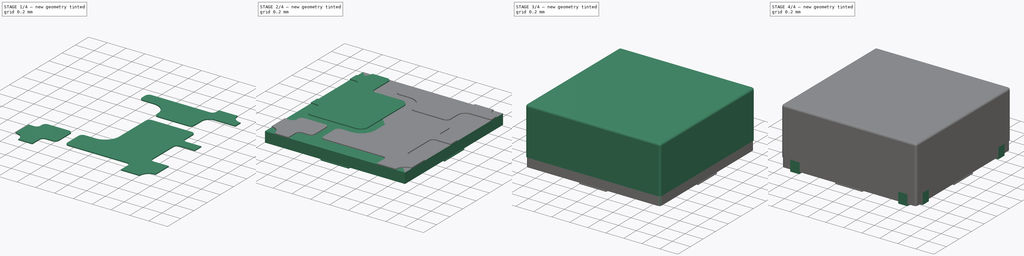
[diagram: build sequence overview — one tinted view per stage of 4, left to right]
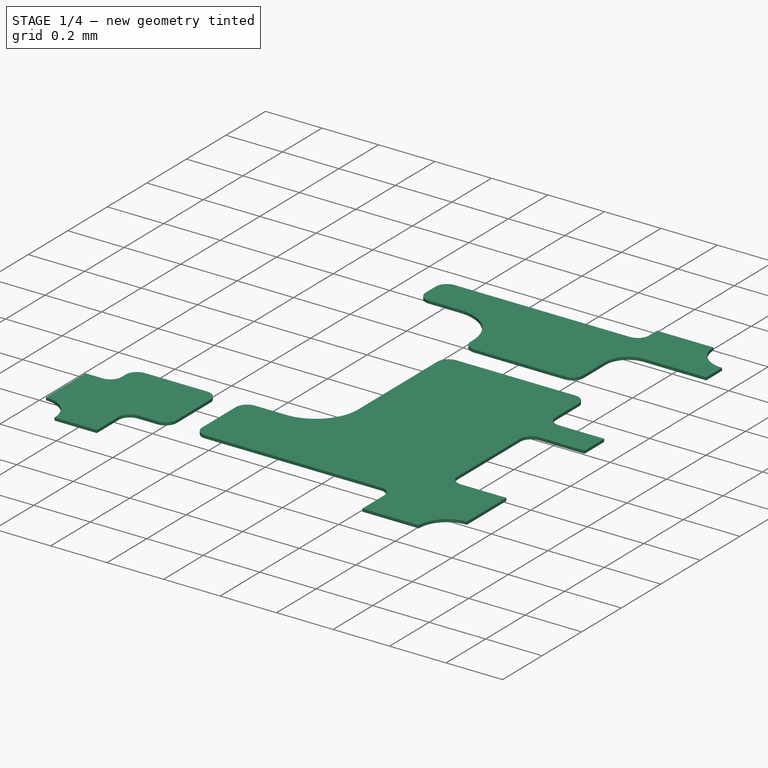
[diagram: stage 1 of 4 — iso view after this stage's code; geometry added in this stage tinted green]
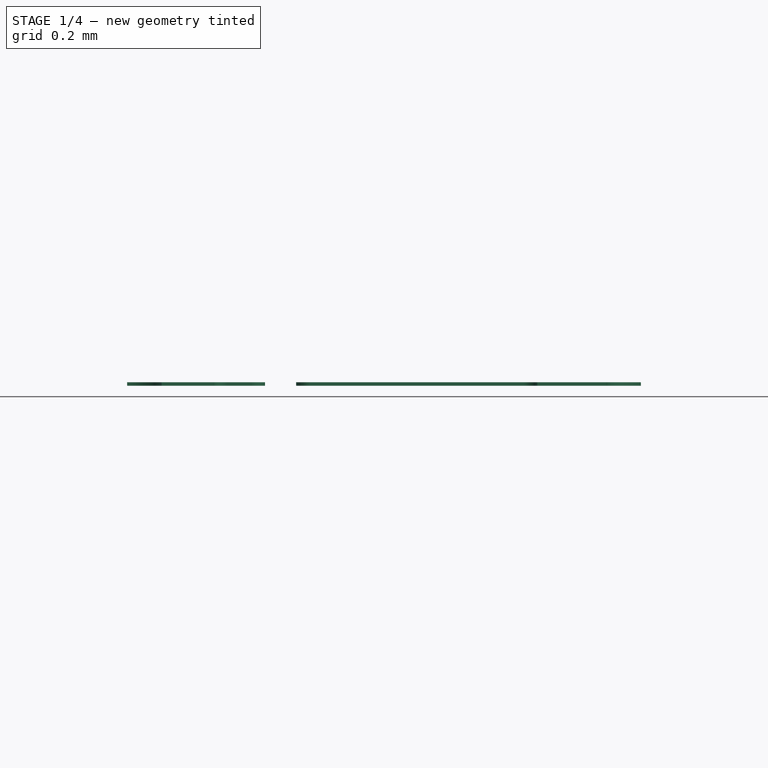
[diagram: stage 1 of 4 — front view after this stage's code; geometry added in this stage tinted green]
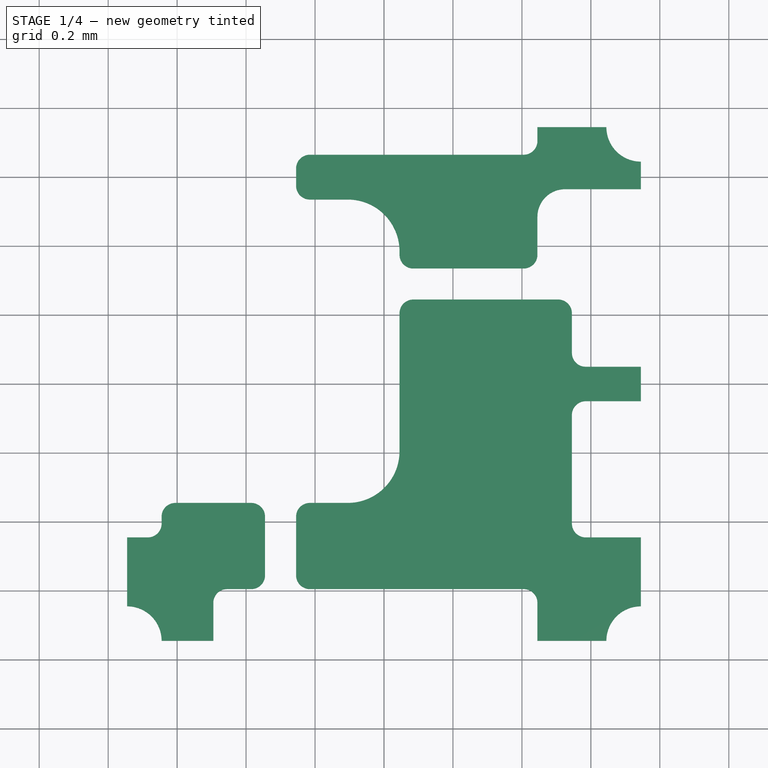
[diagram: stage 1 of 4 — top view after this stage's code; geometry added in this stage tinted green]
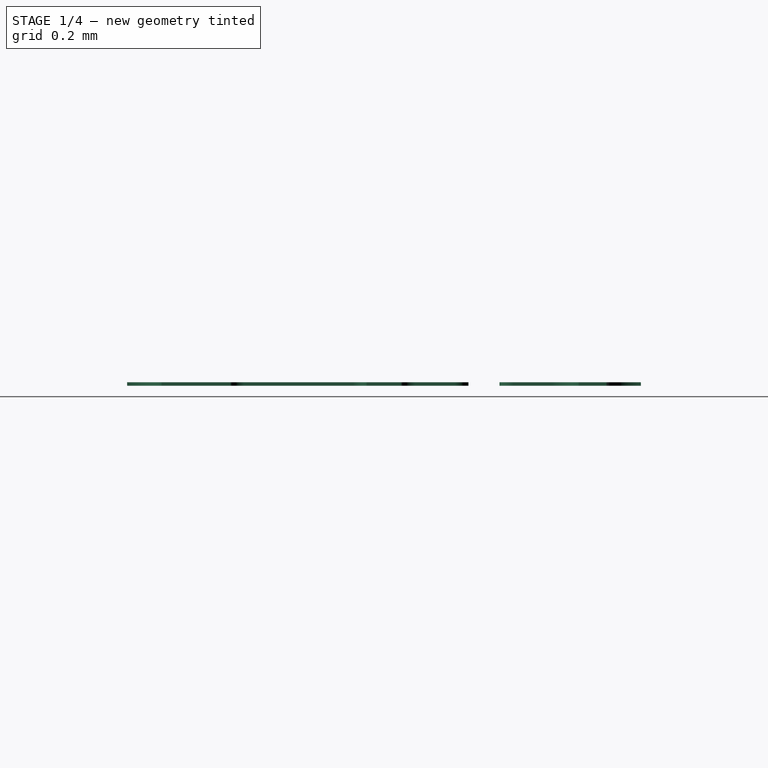
[diagram: stage 1 of 4 — right view after this stage's code; geometry added in this stage tinted green]
FCSTD DOCUMENT  (FreeCAD 0.20R25288 (Git))
Label: SK6805-EC15
License: All rights reserved
LicenseURL: http://en.wikipedia.org/wiki/All_rights_reserved
objects: Sketcher::SketchObject×11, PartDesign::Pad×11, PartDesign::Body×11, PartDesign::Fillet×2, App::Part×1
note: 48 computed .brp shape members not serialized (recipe doc carries the construction recipe); baked Part::Feature solids carry a one-line shape summary decoded from their .brp

FEATURE [PartDesign::Body] Body007  label="Internal Pad 1"
  Group = -> [Sketch004,Pad007]
  Origin = -> Origin008
  Tip = -> Pad007
FEATURE [PartDesign::Pad] Pad008
  Direction = (0,0,1)
  Length = 0.01
  Length2 = 100
  Profile = -> Sketch005
  Type = 0
FEATURE [PartDesign::Body] Body008  label="Internal Pad 2"
  Group = -> [Sketch005,Pad008]
  Origin = -> Origin009
  Tip = -> Pad008
FEATURE [PartDesign::Pad] Pad009
  Direction = (0,0,1)
  Length = 0.01
  Length2 = 100
  Profile = -> Sketch006
  Type = 0
FEATURE [PartDesign::Body] Body009  label="Internal Pad 3"
  Group = -> [Sketch006,Pad009]
  Origin = -> Origin010
  Tip = -> Pad009
FEATURE [PartDesign::Pad] Pad010
  Direction = (0,0,1)
  Length = 0.01
  Length2 = 100
  Profile = -> Sketch007
  Type = 0
FEATURE [PartDesign::Body] Body010  label="Internal Pad 4"
  Group = -> [Sketch007,Pad010]
  Origin = -> Origin011
  Tip = -> Pad010
FEATURE [App::Part] Part  label="SK6805-EC15"
  Group = -> [Body,Body001,Body002,Body003,Body004,Body005,Body006,Body007,Body008,Body009,Body010]
  Origin = -> Origin006
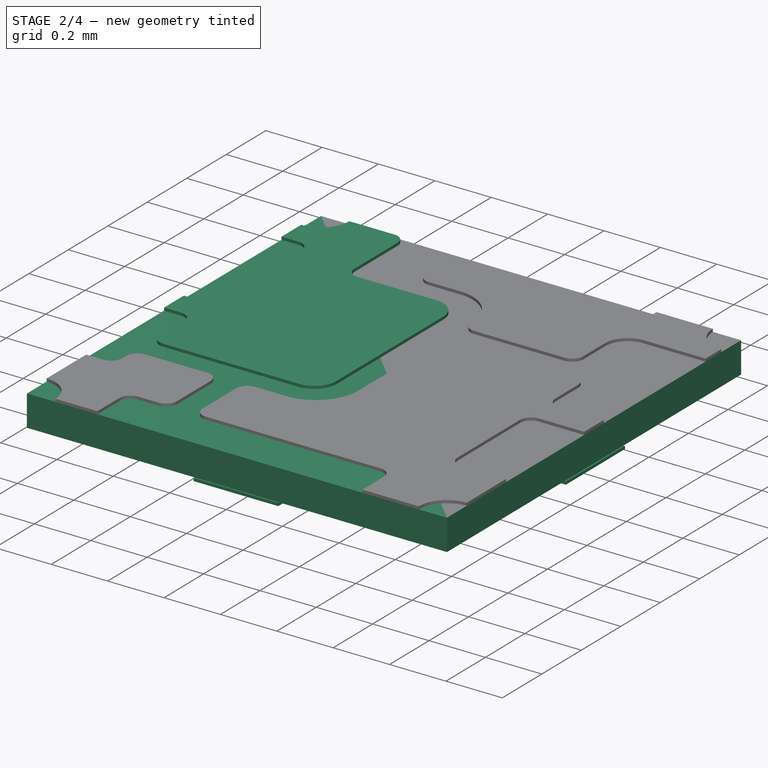
[diagram: stage 2 of 4 — iso view after this stage's code; geometry added in this stage tinted green]
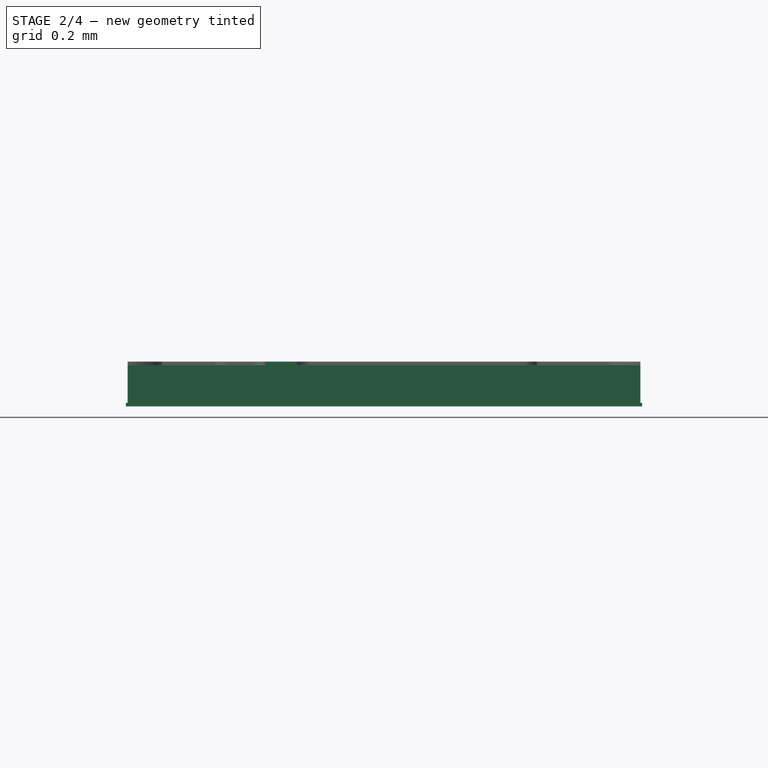
[diagram: stage 2 of 4 — front view after this stage's code; geometry added in this stage tinted green]
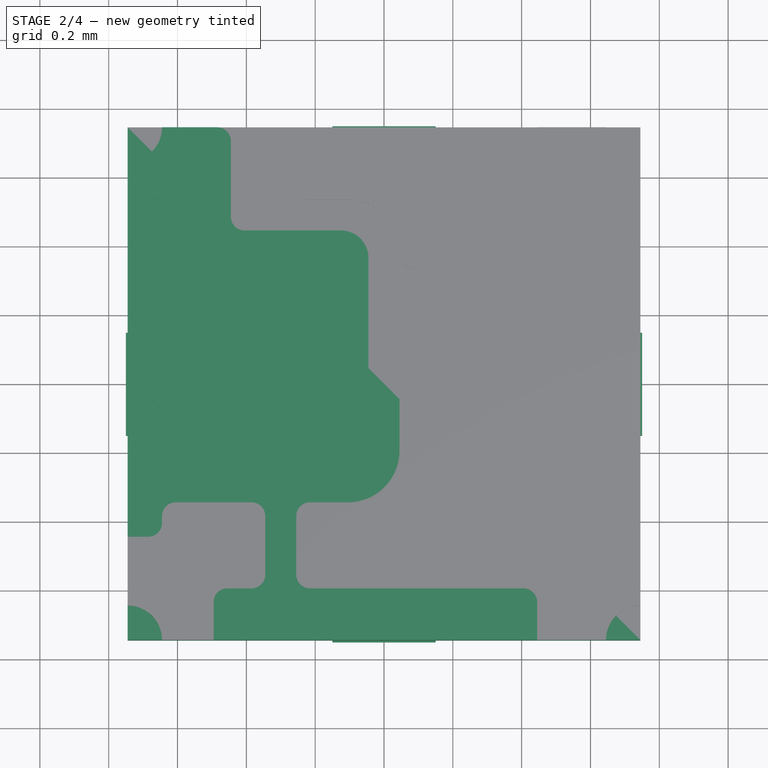
[diagram: stage 2 of 4 — top view after this stage's code; geometry added in this stage tinted green]
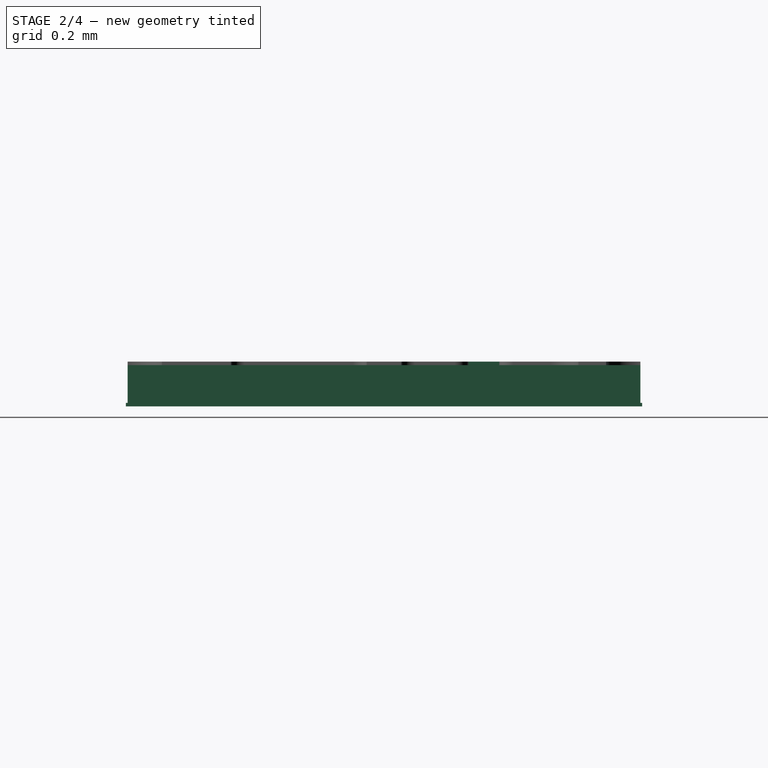
[diagram: stage 2 of 4 — right view after this stage's code; geometry added in this stage tinted green]
FEATURE [PartDesign::Body] Body  label="Pad 4"
  Group = -> [Sketch,Pad003]
  Origin = -> Origin
  Tip = -> Pad003
FEATURE [Sketcher::SketchObject] Sketch001
  AttachmentOffset = pos=(0,0,0.02) rot=(0,0,1;0rad)
  FullyConstrained = true
  MapMode = 5
  Placement = pos=(0,0,0.02) rot=(0,0,1;0rad)
  Support = -> [XY_Plane004]
  sketch-geometry (4):
    g0: LineSegment StartX=-0.745 StartY=0.745 StartZ=0 EndX=0.745 EndY=0.745 EndZ=0
    g1: LineSegment StartX=0.745 StartY=0.745 StartZ=0 EndX=0.745 EndY=-0.745 EndZ=0
    g2: LineSegment StartX=0.745 StartY=-0.745 StartZ=0 EndX=-0.745 EndY=-0.745 EndZ=0
    g3: LineSegment StartX=-0.745 StartY=-0.745 StartZ=0 EndX=-0.745 EndY=0.745 EndZ=0
  constraints (11):
    c: Coincident(g0,g1)
    c: Coincident(g1,g2)
    c: Coincident(g2,g3)
    c: Coincident(g3,g0)
    c: Horizontal(g0)
    c: Horizontal(g2)
    c: Vertical(g1)
    c: Vertical(g3)
    c: Symmetric(g0,g2,g-1)
    c: DistanceX(g0,g0) = 1.49
    c: DistanceY(g1,g1) = 1.49
FEATURE [PartDesign::Pad] Pad004
  Direction = (0,0,1)
  Length = 0.11
  Length2 = 100
  Profile = -> Sketch001
  Type = 0
FEATURE [PartDesign::Body] Body004  label="PCB"
  Group = -> [Sketch001,Pad004,Fillet001]
  Origin = -> Origin004
  Tip = -> Fillet001
FEATURE [Sketcher::SketchObject] Sketch003
  AttachmentOffset = pos=(0,0,0.01) rot=(0,0,1;0rad)
  FullyConstrained = true
  MapMode = 5
  Placement = pos=(0,0,0.01) rot=(0,0,1;0rad)
  Support = -> [XY_Plane007]
  sketch-geometry (21):
    g0: LineSegment StartX=-0.75 StartY=0.75 StartZ=0 EndX=0.75 EndY=0.75 EndZ=0
    g1: LineSegment StartX=0.75 StartY=0.75 StartZ=0 EndX=0.75 EndY=-0.75 EndZ=0
    g2: LineSegment StartX=0.75 StartY=-0.75 StartZ=0 EndX=-0.75 EndY=-0.75 EndZ=0
    g3: LineSegment StartX=-0.75 StartY=-0.75 StartZ=0 EndX=-0.75 EndY=0.75 EndZ=0
    g4: LineSegment StartX=-0.15 StartY=0.75 StartZ=0 EndX=-0.15 EndY=0.15 EndZ=0
    g5: LineSegment StartX=-0.15 StartY=0.15 StartZ=0 EndX=-0.75 EndY=0.15 EndZ=0
    g6: LineSegment StartX=-0.75 StartY=0.15 StartZ=0 EndX=-0.75 EndY=-0.15 EndZ=0
    g7: LineSegment StartX=-0.75 StartY=-0.15 StartZ=0 EndX=-0.15 EndY=-0.15 EndZ=0
    g8: LineSegment StartX=-0.15 StartY=-0.15 StartZ=0 EndX=-0.15 EndY=-0.75 EndZ=0
    g9: LineSegment StartX=-0.15 StartY=-0.75 StartZ=0 EndX=0.15 EndY=-0.75 EndZ=0
    g10: LineSegment StartX=0.15 StartY=-0.75 StartZ=0 EndX=0.15 EndY=-0.15 EndZ=0
    g11: LineSegment StartX=0.15 StartY=-0.15 StartZ=0 EndX=0.75 EndY=-0.15 EndZ=0
    g12: LineSegment StartX=0.75 StartY=-0.15 StartZ=0 EndX=0.75 EndY=0.15 EndZ=0
    g13: LineSegment StartX=0.75 StartY=0.15 StartZ=0 EndX=0.15 EndY=0.15 EndZ=0
    g14: LineSegment StartX=0.15 StartY=0.15 StartZ=0 EndX=0.15 EndY=0.75 EndZ=0
    g15: LineSegment StartX=0.15 StartY=0.75 StartZ=0 EndX=-0.15 EndY=0.75 EndZ=0
    g16: LineSegment StartX=0.45 StartY=-0.1 StartZ=0 EndX=0.536603 EndY=0.05 EndZ=0
    g17: LineSegment StartX=0.536603 StartY=0.05 StartZ=0 EndX=0.363397 EndY=0.05 EndZ=0
    g18: LineSegment StartX=0.363397 StartY=0.05 StartZ=0 EndX=0.45 EndY=-0.1 EndZ=0
    g19: Circle CenterX=0.45 CenterY=0 CenterZ=0 NormalX=0 NormalY=0 NormalZ=1 AngleXU=0 Radius=0.1
    g20: LineSegment StartX=0.15 StartY=-0.15 StartZ=0 EndX=0.75 EndY=0.15 EndZ=0
  constraints (59):
    c: Coincident(g0,g1)
    c: Coincident(g1,g2)
    c: Coincident(g2,g3)
    c: Coincident(g3,g0)
    c: Horizontal(g0)
    c: Horizontal(g2)
    c: Vertical(g1)
    c: Vertical(g3)
    c: Symmetric(g0,g2,g-1)
    c: DistanceX(g0,g0) = 1.5
    c: DistanceY(g1,g1) = 1.5
    c: Coincident(g5,g4)
    c: Horizontal(g5)
    c: Coincident(g6,g5)
    c: Coincident(g7,g6)
    c: Horizontal(g7)
    c: Coincident(g8,g7)
    c: Coincident(g9,g8)
    c: Coincident(g10,g9)
    c: Coincident(g11,g10)
    c: Coincident(g12,g11)
    c: Coincident(g13,g12)
    c: Coincident(g14,g13)
    c: Coincident(g15,g14)
    c: Coincident(g15,g4)
    c: PointOnObject(g14,g0)
    c: PointOnObject(g4,g0)
    c: PointOnObject(g5,g3)
    c: PointOnObject(g6,g3)
    c: PointOnObject(g8,g2)
    c: PointOnObject(g9,g2)
    c: PointOnObject(g11,g1)
    c: PointOnObject(g12,g1)
    c: Vertical(g14)
    c: Vertical(g4)
    c: Vertical(g8)
    c: Vertical(g10)
    c: Horizontal(g13)
    c: Horizontal(g11)
    c: Symmetric(g13,g7,g-1)
    c: Symmetric(g10,g4,g-1)
    c: DistanceX(g15,g15) = 0.3
    c: DistanceY(g12,g12) = 0.3
    c: Equal(g14,g10)
    c: Equal(g7,g11)
    c: Coincident(g16,g17)
    c: Coincident(g17,g18)
    c: Coincident(g18,g16)
    c: Equal(g16,g17)
    c: Equal(g16,g18)
    c: PointOnObject(g16,g19)
    c: PointOnObject(g17,g19)
    c: PointOnObject(g18,g19)
    c: PointOnObject(g19,g-1)
    c: Horizontal(g17)
    c: Coincident(g20,g10)
    c: Coincident(g20,g12)
    c: PointOnObject(g19,g20)
    c: Diameter(g19) = 0.2
FEATURE [PartDesign::Pad] Pad006
  Direction = (0,0,1)
  Length = 0.01
  Length2 = 100
  Profile = -> Sketch003
  Type = 0
FEATURE [PartDesign::Body] Body006  label="Silk Screen"
  Group = -> [Sketch003,Pad006]
  Origin = -> Origin007
  Tip = -> Pad006
FEATURE [Sketcher::SketchObject] Sketch004
  AttachmentOffset = pos=(0,0,0.13) rot=(0,0,1;0rad)
  FullyConstrained = true
  MapMode = 5
  Placement = pos=(0,0,0.13) rot=(0,0,1;0rad)
  Support = -> [XY_Plane008]
  sketch-geometry (83):
    g0: LineSegment StartX=-0.745 StartY=0.745 StartZ=0 EndX=0.745 EndY=0.745 EndZ=0
    g1: LineSegment StartX=0.745 StartY=0.745 StartZ=0 EndX=0.745 EndY=-0.745 EndZ=0
    g2: LineSegment StartX=0.745 StartY=-0.745 StartZ=0 EndX=-0.745 EndY=-0.745 EndZ=0
    g3: LineSegment StartX=-0.745 StartY=-0.745 StartZ=0 EndX=-0.745 EndY=0.745 EndZ=0
    g4: ArcOfCircle CenterX=-0.745 CenterY=0.745 CenterZ=0 NormalX=0 NormalY=0 NormalZ=1 AngleXU=0 Radius=0.1 StartAngle=4.71239 EndAngle=6.28319
    g5: LineSegment StartX=-0.645 StartY=0.745 StartZ=0 EndX=-0.485 EndY=0.745 EndZ=0
    g6: LineSegment StartX=-0.445 StartY=0.705 StartZ=0 EndX=-0.445 EndY=0.485 EndZ=0
    g7: LineSegment StartX=-0.405 StartY=0.445 StartZ=0 EndX=-0.125 EndY=0.445 EndZ=0
    g8: LineSegment StartX=-0.045 StartY=0.365 StartZ=0 EndX=-0.045 EndY=-0.175 EndZ=0
    g9: LineSegment StartX=-0.125 StartY=-0.255 StartZ=0 EndX=-0.605 EndY=-0.255 EndZ=0
    g10: LineSegment StartX=-0.645 StartY=-0.215 StartZ=0 EndX=-0.645 EndY=-0.09 EndZ=0
    g11: LineSegment StartX=-0.685 StartY=-0.05 StartZ=0 EndX=-0.745 EndY=-0.05 EndZ=0
    g12: LineSegment StartX=-0.745 StartY=-0.05 StartZ=0 EndX=-0.745 EndY=0.05 EndZ=0
    g13: LineSegment StartX=-0.745 StartY=0.05 StartZ=0 EndX=-0.685 EndY=0.05 EndZ=0
    g14: LineSegment StartX=-0.645 StartY=0.09 StartZ=0 EndX=-0.645 EndY=0.505 EndZ=0
    g15: LineSegment StartX=-0.685 StartY=0.545 StartZ=0 EndX=-0.745 EndY=0.545 EndZ=0
    g16: LineSegment StartX=-0.745 StartY=0.545 StartZ=0 EndX=-0.745 EndY=0.645 EndZ=0
    g17: ArcOfCircle CenterX=0.745 CenterY=0.745 CenterZ=0 NormalX=0 NormalY=0 NormalZ=1 AngleXU=0 Radius=0.1 StartAngle=3.14159 EndAngle=4.71239
    g18: ArcOfCircle CenterX=0.745 CenterY=-0.745 CenterZ=0 NormalX=0 NormalY=0 NormalZ=1 AngleXU=0 Radius=0.1 StartAngle=1.5708 EndAngle=3.14159
    g19: ArcOfCircle CenterX=-0.745 CenterY=-0.745 CenterZ=0 NormalX=0 NormalY=0 NormalZ=1 AngleXU=0 Radius=0.1 StartAngle=2e-16 EndAngle=1.5708
    g20: GeomPoint X=-0.745 Y=0 Z=0
    g21: ArcOfCircle CenterX=-0.685 CenterY=0.505 CenterZ=0 NormalX=0 NormalY=0 NormalZ=1 AngleXU=0 Radius=0.04 StartAngle=0 EndAngle=1.5708
    g22: ArcOfCircle CenterX=-0.685 CenterY=0.09 CenterZ=0 NormalX=0 NormalY=0 NormalZ=1 AngleXU=0 Radius=0.04 StartAngle=4.71239 EndAngle=6.28319
    g23: ArcOfCircle CenterX=-0.685 CenterY=-0.09 CenterZ=0 NormalX=0 NormalY=0 NormalZ=1 AngleXU=0 Radius=0.04 StartAngle=0 EndAngle=1.5708
    g24: ArcOfCircle CenterX=-0.605 CenterY=-0.215 CenterZ=0 NormalX=0 NormalY=0 NormalZ=1 AngleXU=0 Radius=0.04 StartAngle=3.14159 EndAngle=4.71239
    g25: ArcOfCircle CenterX=-0.125 CenterY=-0.175 CenterZ=0 NormalX=0 NormalY=0 NormalZ=1 AngleXU=0 Radius=0.08 StartAngle=4.71239 EndAngle=6.28319
    g26: ArcOfCircle CenterX=-0.125 CenterY=0.365 CenterZ=0 NormalX=0 NormalY=0 NormalZ=1 AngleXU=0 Radius=0.08 StartAngle=0 EndAngle=1.5708
    g27: ArcOfCircle CenterX=-0.405 CenterY=0.485 CenterZ=0 NormalX=0 NormalY=0 NormalZ=1 AngleXU=0 Radius=0.04 StartAngle=3.14159 EndAngle=4.71239
    g28: ArcOfCircle CenterX=-0.485 CenterY=0.705 CenterZ=0 NormalX=0 NormalY=0 NormalZ=1 AngleXU=0 Radius=0.04 StartAngle=0 EndAngle=1.5708
    g29: LineSegment StartX=0.645 StartY=0.745 StartZ=0 EndX=0.445 EndY=0.745 EndZ=0
    g30: LineSegment StartX=0.445 StartY=0.745 StartZ=0 EndX=0.445 EndY=0.705 EndZ=0
    g31: LineSegment StartX=0.405 StartY=0.665 StartZ=0 EndX=-0.215 EndY=0.665 EndZ=0
    g32: LineSegment StartX=-0.255 StartY=0.625 StartZ=0 EndX=-0.255 EndY=0.575 EndZ=0
    g33: LineSegment StartX=-0.215 StartY=0.535 StartZ=0 EndX=-0.105 EndY=0.535 EndZ=0
    g34: LineSegment StartX=0.045 StartY=0.385 StartZ=0 EndX=0.045 EndY=0.375 EndZ=0
    g35: LineSegment StartX=0.085 StartY=0.335 StartZ=0 EndX=0.405 EndY=0.335 EndZ=0
    g36: LineSegment StartX=0.445 StartY=0.375 StartZ=0 EndX=0.445 EndY=0.485 EndZ=0
    g37: LineSegment StartX=0.525 StartY=0.565 StartZ=0 EndX=0.745 EndY=0.565 EndZ=0
    g38: LineSegment StartX=0.745 StartY=0.565 StartZ=0 EndX=0.745 EndY=0.645 EndZ=0
    g39: ArcOfCircle CenterX=0.405 CenterY=0.705 CenterZ=0 NormalX=0 NormalY=0 NormalZ=1 AngleXU=0 Radius=0.04 StartAngle=4.71239 EndAngle=6.28319
    g40: ArcOfCircle CenterX=-0.215 CenterY=0.625 CenterZ=0 NormalX=0 NormalY=0 NormalZ=1 AngleXU=0 Radius=0.04 StartAngle=1.5708 EndAngle=3.14159
    g41: ArcOfCircle CenterX=-0.215 CenterY=0.575 CenterZ=0 NormalX=0 NormalY=0 NormalZ=1 AngleXU=0 Radius=0.04 StartAngle=3.14159 EndAngle=4.71239
    g42: ArcOfCircle CenterX=-0.105 CenterY=0.385 CenterZ=0 NormalX=0 NormalY=0 NormalZ=1 AngleXU=0 Radius=0.15 StartAngle=0 EndAngle=1.5708
    g43: ArcOfCircle CenterX=0.085 CenterY=0.375 CenterZ=0 NormalX=0 NormalY=0 NormalZ=1 AngleXU=0 Radius=0.04 StartAngle=3.14159 EndAngle=4.71239
    g44: ArcOfCircle CenterX=0.405 CenterY=0.375 CenterZ=0 NormalX=0 NormalY=0 NormalZ=1 AngleXU=0 Radius=0.04 StartAngle=4.71239 EndAngle=6.28319
    g45: ArcOfCircle CenterX=0.525 CenterY=0.485 CenterZ=0 NormalX=0 NormalY=0 NormalZ=1 AngleXU=0 Radius=0.08 StartAngle=1.5708 EndAngle=3.14159
    g46: LineSegment StartX=0.745 StartY=0.05 StartZ=0 EndX=0.585 EndY=0.05 EndZ=0
    g47: LineSegment StartX=0.545 StartY=0.09 StartZ=0 EndX=0.545 EndY=0.205 EndZ=0
    g48: LineSegment StartX=0.505 StartY=0.245 StartZ=0 EndX=0.085 EndY=0.245 EndZ=0
    g49: LineSegment StartX=0.045 StartY=0.205 StartZ=0 EndX=0.045 EndY=-0.195 EndZ=0
    g50: LineSegment StartX=-0.105 StartY=-0.345 StartZ=0 EndX=-0.215 EndY=-0.345 EndZ=0
    g51: LineSegment StartX=-0.255 StartY=-0.385 StartZ=0 EndX=-0.255 EndY=-0.555 EndZ=0
    g52: LineSegment StartX=-0.215 StartY=-0.595 StartZ=0 EndX=0.405 EndY=-0.595 EndZ=0
    g53: LineSegment StartX=0.445 StartY=-0.635 StartZ=0 EndX=0.445 EndY=-0.745 EndZ=0
    g54: LineSegment StartX=0.445 StartY=-0.745 StartZ=0 EndX=0.645 EndY=-0.745 EndZ=0
    g55: LineSegment StartX=0.745 StartY=-0.645 StartZ=0 EndX=0.745 EndY=-0.445 EndZ=0
    g56: LineSegment StartX=0.745 StartY=-0.445 StartZ=0 EndX=0.585 EndY=-0.445 EndZ=0
    g57: LineSegment StartX=0.545 StartY=-0.405 StartZ=0 EndX=0.545 EndY=-0.09 EndZ=0
    g58: LineSegment StartX=0.585 StartY=-0.05 StartZ=0 EndX=0.745 EndY=-0.05 EndZ=0
    g59: LineSegment StartX=0.745 StartY=-0.05 StartZ=0 EndX=0.745 EndY=0.05 EndZ=0
    g60: ArcOfCircle CenterX=0.585 CenterY=0.09 CenterZ=0 NormalX=0 NormalY=0 NormalZ=1 AngleXU=0 Radius=0.04 StartAngle=3.14159 EndAngle=4.71239
    g61: ArcOfCircle CenterX=0.505 CenterY=0.205 CenterZ=0 NormalX=0 NormalY=0 NormalZ=1 AngleXU=0 Radius=0.04 StartAngle=0 EndAngle=1.5708
    g62: ArcOfCircle CenterX=0.085 CenterY=0.205 CenterZ=0 NormalX=0 NormalY=0 NormalZ=1 AngleXU=0 Radius=0.04 StartAngle=1.5708 EndAngle=3.14159
    g63: ArcOfCircle CenterX=-0.105 CenterY=-0.195 CenterZ=0 NormalX=0 NormalY=0 NormalZ=1 AngleXU=0 Radius=0.15 StartAngle=4.71239 EndAngle=6.28319
    g64: ArcOfCircle CenterX=-0.215 CenterY=-0.385 CenterZ=0 NormalX=0 NormalY=0 NormalZ=1 AngleXU=0 Radius=0.04 StartAngle=1.5708 EndAngle=3.14159
    g65: ArcOfCircle CenterX=-0.215 CenterY=-0.555 CenterZ=0 NormalX=0 NormalY=0 NormalZ=1 AngleXU=0 Radius=0.04 StartAngle=3.14159 EndAngle=4.71239
    g66: ArcOfCircle CenterX=0.405 CenterY=-0.635 CenterZ=0 NormalX=0 NormalY=0 NormalZ=1 AngleXU=0 Radius=0.04 StartAngle=0 EndAngle=1.5708
    g67: ArcOfCircle CenterX=0.585 CenterY=-0.405 CenterZ=0 NormalX=0 NormalY=0 NormalZ=1 AngleXU=0 Radius=0.04 StartAngle=3.14159 EndAngle=4.71239
    g68: ArcOfCircle CenterX=0.585 CenterY=-0.09 CenterZ=0 NormalX=0 NormalY=0 NormalZ=1 AngleXU=0 Radius=0.04 StartAngle=1.5708 EndAngle=3.14159
    g69: GeomPoint X=0.745 Y=0 Z=0
    g70: LineSegment StartX=-0.745 StartY=-0.645 StartZ=0 EndX=-0.745 EndY=-0.445 EndZ=0
    g71: LineSegment StartX=-0.745 StartY=-0.445 StartZ=0 EndX=-0.685 EndY=-0.445 EndZ=0
    g72: LineSegment StartX=-0.645 StartY=-0.405 StartZ=0 EndX=-0.645 EndY=-0.385 EndZ=0
    g73: LineSegment StartX=-0.605 StartY=-0.345 StartZ=0 EndX=-0.385 EndY=-0.345 EndZ=0
    g74: LineSegment StartX=-0.345 StartY=-0.385 StartZ=0 EndX=-0.345 EndY=-0.555 EndZ=0
    g75: LineSegment StartX=-0.385 StartY=-0.595 StartZ=0 EndX=-0.455 EndY=-0.595 EndZ=0
    g76: LineSegment StartX=-0.495 StartY=-0.635 StartZ=0 EndX=-0.495 EndY=-0.745 EndZ=0
    g77: LineSegment StartX=-0.495 StartY=-0.745 StartZ=0 EndX=-0.645 EndY=-0.745 EndZ=0
    g78: ArcOfCircle CenterX=-0.685 CenterY=-0.405 CenterZ=0 NormalX=0 NormalY=0 NormalZ=1 AngleXU=0 Radius=0.04 StartAngle=4.71239 EndAngle=6.28319
    g79: ArcOfCircle CenterX=-0.605 CenterY=-0.385 CenterZ=0 NormalX=0 NormalY=0 NormalZ=1 AngleXU=0 Radius=0.04 StartAngle=1.5708 EndAngle=3.14159
    g80: ArcOfCircle CenterX=-0.385 CenterY=-0.385 CenterZ=0 NormalX=0 NormalY=0 NormalZ=1 AngleXU=0 Radius=0.04 StartAngle=0 EndAngle=1.5708
    g81: ArcOfCircle CenterX=-0.385 CenterY=-0.555 CenterZ=0 NormalX=0 NormalY=0 NormalZ=1 AngleXU=0 Radius=0.04 StartAngle=4.71239 EndAngle=6.28319
    g82: ArcOfCircle CenterX=-0.455 CenterY=-0.635 CenterZ=0 NormalX=0 NormalY=0 NormalZ=1 AngleXU=0 Radius=0.04 StartAngle=1.5708 EndAngle=3.14159
  constraints (215):
    c: Coincident(g0,g1)
    c: Coincident(g1,g2)
    c: Coincident(g2,g3)
    c: Coincident(g3,g0)
    c: Horizontal(g0)
    c: Horizontal(g2)
    c: Vertical(g1)
    c: Vertical(g3)
    c: Symmetric(g0,g2,g-1)
    c: DistanceX(g0,g0) = 1.49
    c: DistanceY(g1,g1) = 1.49
    c: Coincident(g4,g0)
    c: PointOnObject(g4,g3)
    c: PointOnObject(g4,g0)
    c: Radius(g4) = 0.1
    c: Coincident(g5,g4)
    c: PointOnObject(g11,g3)
    c: Coincident(g12,g11)
    c: PointOnObject(g12,g3)
    c: Coincident(g13,g12)
    c: Horizontal(g13)
    c: PointOnObject(g15,g3)
    c: Coincident(g16,g15)
    c: Coincident(g16,g4)
    c: Vertical(g6)
    c: Vertical(g8)
    c: Vertical(g10)
    c: Vertical(g14)
    c: Horizontal(g15)
    c: Horizontal(g11)
    c: Horizontal(g7)
    c: Horizontal(g9)
    c: Coincident(g17,g0)
    c: PointOnObject(g17,g1)
    c: PointOnObject(g17,g0)
    c: Radius(g17) = 0.1
    c: Coincident(g18,g1)
    c: PointOnObject(g18,g2)
    c: PointOnObject(g18,g1)
    c: Coincident(g19,g2)
    c: PointOnObject(g19,g2)
    c: PointOnObject(g19,g3)
    c: Radius(g18) = 0.1
    c: Radius(g19) = 0.1
    c: DistanceY(g16,g16) = 0.1
    c: DistanceY(g12,g12) = 0.1
    c: PointOnObject(g20,g-1)
    c: Symmetric(g12,g11,g20)
    c: Tangent(g15,g21) = -1.5708
    c: Tangent(g14,g21) = -1.5708
    c: Tangent(g14,g22) = -1.5708
    c: Tangent(g13,g22) = -1.5708
    c: Tangent(g11,g23) = -1.5708
    c: Tangent(g10,g23) = -1.5708
    c: Tangent(g10,g24) = 1.5708
    c: Tangent(g9,g24) = 1.5708
    c: Tangent(g9,g25) = 1.5708
    c: Tangent(g8,g25) = 1.5708
    c: Tangent(g7,g26) = 1.5708
    c: Tangent(g8,g26) = 1.5708
    c: Tangent(g6,g27) = -1.5708
    c: Tangent(g7,g27) = -1.5708
    c: Tangent(g5,g28) = 1.5708
    c: Tangent(g6,g28) = 1.5708
    c: DistanceX(g4,g6) = 0.2
    c: DistanceX(g6,g8) = 0.4
    c: DistanceX(g10,g8) = 0.6
    c: DistanceX(g12,g14) = 0.1
    c: DistanceY(g9,g7) = 0.7
    c: Radius(g21) = 0.04
    c: Radius(g22) = 0.04
    c: Radius(g23) = 0.04
    c: Radius(g24) = 0.04
    c: Radius(g25) = 0.08
    c: Radius(g26) = 0.08
    c: Radius(g27) = 0.04
    c: Radius(g28) = 0.04
    c: DistanceY(g7,g5) = 0.3
    c: PointOnObject(g5,g0)
    c: Coincident(g29,g17)
    c: PointOnObject(g29,g0)
    c: Coincident(g30,g29)
    c: PointOnObject(g37,g1)
    c: Coincident(g38,g37)
    c: Coincident(g38,g17)
    c: Horizontal(g31)
    c: Horizontal(g35)
    c: Horizontal(g37)
    c: Horizontal(g33)
    c: Vertical(g30)
    c: Vertical(g32)
    c: Vertical(g34)
    c: Vertical(g36)
    c: Tangent(g30,g39) = 1.5708
    c: Tangent(g31,g39) = 1.5708
    c: Tangent(g31,g40) = -1.5708
    c: Tangent(g32,g40) = -1.5708
    c: Tangent(g32,g41) = -1.5708
    c: Tangent(g33,g41) = -1.5708
    c: Tangent(g33,g42) = 1.5708
    c: Tangent(g34,g42) = 1.5708
    c: Tangent(g34,g43) = -1.5708
    c: Tangent(g35,g43) = -1.5708
    c: Tangent(g35,g44) = -1.5708
    c: Tangent(g36,g44) = -1.5708
    c: Tangent(g36,g45) = 1.5708
    c: Tangent(g37,g45) = 1.5708
    c: Radius(g39) = 0.04
    c: Radius(g40) = 0.04
    c: Radius(g41) = 0.04
    c: Radius(g42) = 0.15
    c: Radius(g43) = 0.04
    c: Radius(g44) = 0.04
    c: Radius(g45) = 0.08
    c: DistanceX(g29,g17) = 0.2
    c: DistanceY(g37,g17) = 0.08
    c: DistanceY(g31,g29) = 0.08
    c: DistanceX(g32,g30) = 0.7
    c: Vertical(g36,g30)
    c: DistanceY(g35,g33) = 0.2
    c: DistanceY(g7,g33) = 0.09
    c: DistanceX(g8,g34) = 0.09
    c: PointOnObject(g46,g1)
    c: PointOnObject(g53,g2)
    c: Coincident(g54,g53)
    c: Coincident(g54,g18)
    c: Coincident(g55,g18)
    c: Coincident(g56,g55)
    c: PointOnObject(g58,g1)
    c: Coincident(g59,g58)
    c: Coincident(g59,g46)
    c: Horizontal(g48)
    c: Horizontal(g46)
    c: Horizontal(g58)
    c: Horizontal(g56)
    c: PointOnObject(g55,g1)
    c: Horizontal(g52)
    c: Horizontal(g50)
    c: Vertical(g57)
    c: Vertical(g47)
    c: Vertical(g49)
    c: Vertical(g51)
    c: Vertical(g53)
    c: Tangent(g46,g60) = 1.5708
    c: Tangent(g47,g60) = 1.5708
    c: Tangent(g47,g61) = -1.5708
    c: Tangent(g48,g61) = -1.5708
    c: Tangent(g48,g62) = -1.5708
    c: Tangent(g49,g62) = -1.5708
    c: Tangent(g49,g63) = 1.5708
    c: Tangent(g50,g63) = 1.5708
    c: Tangent(g50,g64) = -1.5708
    c: Tangent(g51,g64) = -1.5708
    c: Tangent(g51,g65) = -1.5708
    c: Tangent(g52,g65) = -1.5708
    c: Tangent(g52,g66) = 1.5708
    c: Tangent(g53,g66) = 1.5708
    c: Tangent(g56,g67) = 1.5708
    c: Tangent(g57,g67) = 1.5708
    c: Tangent(g57,g68) = 1.5708
    c: Tangent(g58,g68) = 1.5708
    c: Radius(g60) = 0.04
    c: Radius(g61) = 0.04
    c: Radius(g62) = 0.04
    c: Radius(g63) = 0.15
    c: Radius(g64) = 0.04
    c: Radius(g65) = 0.04
    c: Radius(g66) = 0.04
    c: Radius(g67) = 0.04
    c: Radius(g68) = 0.04
    c: PointOnObject(g69,g-1)
    c: Symmetric(g46,g58,g69)
    c: DistanceY(g58,g46) = 0.1
    c: DistanceY(g48,g35) = 0.09
    c: Vertical(g49,g34)
    c: DistanceY(g50,g9) = 0.09
    c: DistanceY(g53,g52) = 0.15
    c: DistanceX(g57,g55) = 0.2
    c: DistanceY(g18,g55) = 0.2
    c: DistanceX(g53,g18) = 0.2
    c: Vertical(g47,g57)
    c: DistanceX(g51,g49) = 0.3
    c: Coincident(g70,g19)
    c: Coincident(g71,g70)
    c: PointOnObject(g76,g2)
    c: Coincident(g77,g76)
    c: Coincident(g77,g19)
    c: PointOnObject(g70,g3)
    c: Vertical(g76)
    c: Vertical(g74)
    c: Vertical(g72)
    c: Horizontal(g71)
    c: Horizontal(g75)
    c: Horizontal(g73)
    c: Tangent(g71,g78) = -1.5708
    c: Tangent(g72,g78) = -1.5708
    c: Tangent(g72,g79) = 1.5708
    c: Tangent(g73,g79) = 1.5708
    c: Tangent(g73,g80) = 1.5708
    c: Tangent(g74,g80) = 1.5708
    c: Tangent(g74,g81) = 1.5708
    c: Tangent(g75,g81) = 1.5708
    c: Tangent(g75,g82) = -1.5708
    c: Tangent(g76,g82) = -1.5708
    c: Horizontal(g73,g50)
    c: Horizontal(g75,g52)
    c: Horizontal(g70,g55)
    c: Vertical(g72,g10)
    c: DistanceX(g19,g76) = 0.15
    c: DistanceX(g74,g51) = 0.09
    c: Radius(g80) = 0.04
    c: Radius(g79) = 0.04
    c: Radius(g78) = 0.04
    c: Radius(g82) = 0.04
    c: Radius(g81) = 0.04
FEATURE [Sketcher::SketchObject] Sketch005
  AttachmentOffset = pos=(0,0,0.13) rot=(0,0,1;0rad)
  FullyConstrained = true
  MapMode = 5
  Placement = pos=(0,0,0.13) rot=(0,0,1;0rad)
  Support = -> [XY_Plane009]
  sketch-geometry (83):
    g0: LineSegment StartX=-0.745 StartY=0.745 StartZ=0 EndX=0.745 EndY=0.745 EndZ=0
    g1: LineSegment StartX=0.745 StartY=0.745 StartZ=0 EndX=0.745 EndY=-0.745 EndZ=0
    g2: LineSegment StartX=0.745 StartY=-0.745 StartZ=0 EndX=-0.745 EndY=-0.745 EndZ=0
    g3: LineSegment StartX=-0.745 StartY=-0.745 StartZ=0 EndX=-0.745 EndY=0.745 EndZ=0
    g4: ArcOfCircle CenterX=-0.745 CenterY=0.745 CenterZ=0 NormalX=0 NormalY=0 NormalZ=1 AngleXU=0 Radius=0.1 StartAngle=4.71239 EndAngle=6.28319
    g5: LineSegment StartX=-0.645 StartY=0.745 StartZ=0 EndX=-0.485 EndY=0.745 EndZ=0
    g6: LineSegment StartX=-0.445 StartY=0.705 StartZ=0 EndX=-0.445 EndY=0.485 EndZ=0
    g7: LineSegment StartX=-0.405 StartY=0.445 StartZ=0 EndX=-0.125 EndY=0.445 EndZ=0
    g8: LineSegment StartX=-0.045 StartY=0.365 StartZ=0 EndX=-0.045 EndY=-0.175 EndZ=0
    g9: LineSegment StartX=-0.125 StartY=-0.255 StartZ=0 EndX=-0.605 EndY=-0.255 EndZ=0
    g10: LineSegment StartX=-0.645 StartY=-0.215 StartZ=0 EndX=-0.645 EndY=-0.09 EndZ=0
    g11: LineSegment StartX=-0.685 StartY=-0.05 StartZ=0 EndX=-0.745 EndY=-0.05 EndZ=0
    g12: LineSegment StartX=-0.745 StartY=-0.05 StartZ=0 EndX=-0.745 EndY=0.05 EndZ=0
    g13: LineSegment StartX=-0.745 StartY=0.05 StartZ=0 EndX=-0.685 EndY=0.05 EndZ=0
    g14: LineSegment StartX=-0.645 StartY=0.09 StartZ=0 EndX=-0.645 EndY=0.505 EndZ=0
    g15: LineSegment StartX=-0.685 StartY=0.545 StartZ=0 EndX=-0.745 EndY=0.545 EndZ=0
    g16: LineSegment StartX=-0.745 StartY=0.545 StartZ=0 EndX=-0.745 EndY=0.645 EndZ=0
    g17: ArcOfCircle CenterX=0.745 CenterY=0.745 CenterZ=0 NormalX=0 NormalY=0 NormalZ=1 AngleXU=0 Radius=0.1 StartAngle=3.14159 EndAngle=4.71239
    g18: ArcOfCircle CenterX=0.745 CenterY=-0.745 CenterZ=0 NormalX=0 NormalY=0 NormalZ=1 AngleXU=0 Radius=0.1 StartAngle=1.5708 EndAngle=3.14159
    g19: ArcOfCircle CenterX=-0.745 CenterY=-0.745 CenterZ=0 NormalX=0 NormalY=0 NormalZ=1 AngleXU=0 Radius=0.1 StartAngle=2e-16 EndAngle=1.5708
    g20: GeomPoint X=-0.745 Y=0 Z=0
    g21: ArcOfCircle CenterX=-0.685 CenterY=0.505 CenterZ=0 NormalX=0 NormalY=0 NormalZ=1 AngleXU=0 Radius=0.04 StartAngle=0 EndAngle=1.5708
    g22: ArcOfCircle CenterX=-0.685 CenterY=0.09 CenterZ=0 NormalX=0 NormalY=0 NormalZ=1 AngleXU=0 Radius=0.04 StartAngle=4.71239 EndAngle=6.28319
    g23: ArcOfCircle CenterX=-0.685 CenterY=-0.09 CenterZ=0 NormalX=0 NormalY=0 NormalZ=1 AngleXU=0 Radius=0.04 StartAngle=0 EndAngle=1.5708
    g24: ArcOfCircle CenterX=-0.605 CenterY=-0.215 CenterZ=0 NormalX=0 NormalY=0 NormalZ=1 AngleXU=0 Radius=0.04 StartAngle=3.14159 EndAngle=4.71239
    g25: ArcOfCircle CenterX=-0.125 CenterY=-0.175 CenterZ=0 NormalX=0 NormalY=0 NormalZ=1 AngleXU=0 Radius=0.08 StartAngle=4.71239 EndAngle=6.28319
    g26: ArcOfCircle CenterX=-0.125 CenterY=0.365 CenterZ=0 NormalX=0 NormalY=0 NormalZ=1 AngleXU=0 Radius=0.08 StartAngle=0 EndAngle=1.5708
    g27: ArcOfCircle CenterX=-0.405 CenterY=0.485 CenterZ=0 NormalX=0 NormalY=0 NormalZ=1 AngleXU=0 Radius=0.04 StartAngle=3.14159 EndAngle=4.71239
    g28: ArcOfCircle CenterX=-0.485 CenterY=0.705 CenterZ=0 NormalX=0 NormalY=0 NormalZ=1 AngleXU=0 Radius=0.04 StartAngle=0 EndAngle=1.5708
    g29: LineSegment StartX=0.645 StartY=0.745 StartZ=0 EndX=0.445 EndY=0.745 EndZ=0
    g30: LineSegment StartX=0.445 StartY=0.745 StartZ=0 EndX=0.445 EndY=0.705 EndZ=0
    g31: LineSegment StartX=0.405 StartY=0.665 StartZ=0 EndX=-0.215 EndY=0.665 EndZ=0
    g32: LineSegment StartX=-0.255 StartY=0.625 StartZ=0 EndX=-0.255 EndY=0.575 EndZ=0
    g33: LineSegment StartX=-0.215 StartY=0.535 StartZ=0 EndX=-0.105 EndY=0.535 EndZ=0
    g34: LineSegment StartX=0.045 StartY=0.385 StartZ=0 EndX=0.045 EndY=0.375 EndZ=0
    g35: LineSegment StartX=0.085 StartY=0.335 StartZ=0 EndX=0.405 EndY=0.335 EndZ=0
    g36: LineSegment StartX=0.445 StartY=0.375 StartZ=0 EndX=0.445 EndY=0.485 EndZ=0
    g37: LineSegment StartX=0.525 StartY=0.565 StartZ=0 EndX=0.745 EndY=0.565 EndZ=0
    g38: LineSegment StartX=0.745 StartY=0.565 StartZ=0 EndX=0.745 EndY=0.645 EndZ=0
    g39: ArcOfCircle CenterX=0.405 CenterY=0.705 CenterZ=0 NormalX=0 NormalY=0 NormalZ=1 AngleXU=0 Radius=0.04 StartAngle=4.71239 EndAngle=6.28319
    g40: ArcOfCircle CenterX=-0.215 CenterY=0.625 CenterZ=0 NormalX=0 NormalY=0 NormalZ=1 AngleXU=0 Radius=0.04 StartAngle=1.5708 EndAngle=3.14159
    g41: ArcOfCircle CenterX=-0.215 CenterY=0.575 CenterZ=0 NormalX=0 NormalY=0 NormalZ=1 AngleXU=0 Radius=0.04 StartAngle=3.14159 EndAngle=4.71239
    g42: ArcOfCircle CenterX=-0.105 CenterY=0.385 CenterZ=0 NormalX=0 NormalY=0 NormalZ=1 AngleXU=0 Radius=0.15 StartAngle=0 EndAngle=1.5708
    g43: ArcOfCircle CenterX=0.085 CenterY=0.375 CenterZ=0 NormalX=0 NormalY=0 NormalZ=1 AngleXU=0 Radius=0.04 StartAngle=3.14159 EndAngle=4.71239
    g44: ArcOfCircle CenterX=0.405 CenterY=0.375 CenterZ=0 NormalX=0 NormalY=0 NormalZ=1 AngleXU=0 Radius=0.04 StartAngle=4.71239 EndAngle=6.28319
    g45: ArcOfCircle CenterX=0.525 CenterY=0.485 CenterZ=0 NormalX=0 NormalY=0 NormalZ=1 AngleXU=0 Radius=0.08 StartAngle=1.5708 EndAngle=3.14159
    g46: LineSegment StartX=0.745 StartY=0.05 StartZ=0 EndX=0.585 EndY=0.05 EndZ=0
    g47: LineSegment StartX=0.545 StartY=0.09 StartZ=0 EndX=0.545 EndY=0.205 EndZ=0
    g48: LineSegment StartX=0.505 StartY=0.245 StartZ=0 EndX=0.085 EndY=0.245 EndZ=0
    g49: LineSegment StartX=0.045 StartY=0.205 StartZ=0 EndX=0.045 EndY=-0.195 EndZ=0
    g50: LineSegment StartX=-0.105 StartY=-0.345 StartZ=0 EndX=-0.215 EndY=-0.345 EndZ=0
    g51: LineSegment StartX=-0.255 StartY=-0.385 StartZ=0 EndX=-0.255 EndY=-0.555 EndZ=0
    g52: LineSegment StartX=-0.215 StartY=-0.595 StartZ=0 EndX=0.405 EndY=-0.595 EndZ=0
    g53: LineSegment StartX=0.445 StartY=-0.635 StartZ=0 EndX=0.445 EndY=-0.745 EndZ=0
    g54: LineSegment StartX=0.445 StartY=-0.745 StartZ=0 EndX=0.645 EndY=-0.745 EndZ=0
    g55: LineSegment StartX=0.745 StartY=-0.645 StartZ=0 EndX=0.745 EndY=-0.445 EndZ=0
    g56: LineSegment StartX=0.745 StartY=-0.445 StartZ=0 EndX=0.585 EndY=-0.445 EndZ=0
    g57: LineSegment StartX=0.545 StartY=-0.405 StartZ=0 EndX=0.545 EndY=-0.09 EndZ=0
    g58: LineSegment StartX=0.585 StartY=-0.05 StartZ=0 EndX=0.745 EndY=-0.05 EndZ=0
    g59: LineSegment StartX=0.745 StartY=-0.05 StartZ=0 EndX=0.745 EndY=0.05 EndZ=0
    g60: ArcOfCircle CenterX=0.585 CenterY=0.09 CenterZ=0 NormalX=0 NormalY=0 NormalZ=1 AngleXU=0 Radius=0.04 StartAngle=3.14159 EndAngle=4.71239
    g61: ArcOfCircle CenterX=0.505 CenterY=0.205 CenterZ=0 NormalX=0 NormalY=0 NormalZ=1 AngleXU=0 Radius=0.04 StartAngle=0 EndAngle=1.5708
    g62: ArcOfCircle CenterX=0.085 CenterY=0.205 CenterZ=0 NormalX=0 NormalY=0 NormalZ=1 AngleXU=0 Radius=0.04 StartAngle=1.5708 EndAngle=3.14159
    g63: ArcOfCircle CenterX=-0.105 CenterY=-0.195 CenterZ=0 NormalX=0 NormalY=0 NormalZ=1 AngleXU=0 Radius=0.15 StartAngle=4.71239 EndAngle=6.28319
    g64: ArcOfCircle CenterX=-0.215 CenterY=-0.385 CenterZ=0 NormalX=0 NormalY=0 NormalZ=1 AngleXU=0 Radius=0.04 StartAngle=1.5708 EndAngle=3.14159
    g65: ArcOfCircle CenterX=-0.215 CenterY=-0.555 CenterZ=0 NormalX=0 NormalY=0 NormalZ=1 AngleXU=0 Radius=0.04 StartAngle=3.14159 EndAngle=4.71239
    g66: ArcOfCircle CenterX=0.405 CenterY=-0.635 CenterZ=0 NormalX=0 NormalY=0 NormalZ=1 AngleXU=0 Radius=0.04 StartAngle=0 EndAngle=1.5708
    g67: ArcOfCircle CenterX=0.585 CenterY=-0.405 CenterZ=0 NormalX=0 NormalY=0 NormalZ=1 AngleXU=0 Radius=0.04 StartAngle=3.14159 EndAngle=4.71239
    g68: ArcOfCircle CenterX=0.585 CenterY=-0.09 CenterZ=0 NormalX=0 NormalY=0 NormalZ=1 AngleXU=0 Radius=0.04 StartAngle=1.5708 EndAngle=3.14159
    g69: GeomPoint X=0.745 Y=0 Z=0
    g70: LineSegment StartX=-0.745 StartY=-0.645 StartZ=0 EndX=-0.745 EndY=-0.445 EndZ=0
    g71: LineSegment StartX=-0.745 StartY=-0.445 StartZ=0 EndX=-0.685 EndY=-0.445 EndZ=0
    g72: LineSegment StartX=-0.645 StartY=-0.405 StartZ=0 EndX=-0.645 EndY=-0.385 EndZ=0
    g73: LineSegment StartX=-0.605 StartY=-0.345 StartZ=0 EndX=-0.385 EndY=-0.345 EndZ=0
    g74: LineSegment StartX=-0.345 StartY=-0.385 StartZ=0 EndX=-0.345 EndY=-0.555 EndZ=0
    g75: LineSegment StartX=-0.385 StartY=-0.595 StartZ=0 EndX=-0.455 EndY=-0.595 EndZ=0
    g76: LineSegment StartX=-0.495 StartY=-0.635 StartZ=0 EndX=-0.495 EndY=-0.745 EndZ=0
    g77: LineSegment StartX=-0.495 StartY=-0.745 StartZ=0 EndX=-0.645 EndY=-0.745 EndZ=0
    g78: ArcOfCircle CenterX=-0.685 CenterY=-0.405 CenterZ=0 NormalX=0 NormalY=0 NormalZ=1 AngleXU=0 Radius=0.04 StartAngle=4.71239 EndAngle=6.28319
    g79: ArcOfCircle CenterX=-0.605 CenterY=-0.385 CenterZ=0 NormalX=0 NormalY=0 NormalZ=1 AngleXU=0 Radius=0.04 StartAngle=1.5708 EndAngle=3.14159
    g80: ArcOfCircle CenterX=-0.385 CenterY=-0.385 CenterZ=0 NormalX=0 NormalY=0 NormalZ=1 AngleXU=0 Radius=0.04 StartAngle=0 EndAngle=1.5708
    g81: ArcOfCircle CenterX=-0.385 CenterY=-0.555 CenterZ=0 NormalX=0 NormalY=0 NormalZ=1 AngleXU=0 Radius=0.04 StartAngle=4.71239 EndAngle=6.28319
    g82: ArcOfCircle CenterX=-0.455 CenterY=-0.635 CenterZ=0 NormalX=0 NormalY=0 NormalZ=1 AngleXU=0 Radius=0.04 StartAngle=1.5708 EndAngle=3.14159
  constraints (215):
    c: Coincident(g0,g1)
    c: Coincident(g1,g2)
    c: Coincident(g2,g3)
    c: Coincident(g3,g0)
    c: Horizontal(g0)
    c: Horizontal(g2)
    c: Vertical(g1)
    c: Vertical(g3)
    c: Symmetric(g0,g2,g-1)
    c: DistanceX(g0,g0) = 1.49
    c: DistanceY(g1,g1) = 1.49
    c: Coincident(g4,g0)
    c: PointOnObject(g4,g3)
    c: PointOnObject(g4,g0)
    c: Radius(g4) = 0.1
    c: Coincident(g5,g4)
    c: PointOnObject(g11,g3)
    c: Coincident(g12,g11)
    c: PointOnObject(g12,g3)
    c: Coincident(g13,g12)
    c: Horizontal(g13)
    c: PointOnObject(g15,g3)
    c: Coincident(g16,g15)
    c: Coincident(g16,g4)
    c: Vertical(g6)
    c: Vertical(g8)
    c: Vertical(g10)
    c: Vertical(g14)
    c: Horizontal(g15)
    c: Horizontal(g11)
    c: Horizontal(g7)
    c: Horizontal(g9)
    c: Coincident(g17,g0)
    c: PointOnObject(g17,g1)
    c: PointOnObject(g17,g0)
    c: Radius(g17) = 0.1
    c: Coincident(g18,g1)
    c: PointOnObject(g18,g2)
    c: PointOnObject(g18,g1)
    c: Coincident(g19,g2)
    c: PointOnObject(g19,g2)
    c: PointOnObject(g19,g3)
    c: Radius(g18) = 0.1
    c: Radius(g19) = 0.1
    c: DistanceY(g16,g16) = 0.1
    c: DistanceY(g12,g12) = 0.1
    c: PointOnObject(g20,g-1)
    c: Symmetric(g12,g11,g20)
    c: Tangent(g15,g21) = -1.5708
    c: Tangent(g14,g21) = -1.5708
    c: Tangent(g14,g22) = -1.5708
    c: Tangent(g13,g22) = -1.5708
    c: Tangent(g11,g23) = -1.5708
    c: Tangent(g10,g23) = -1.5708
    c: Tangent(g10,g24) = 1.5708
    c: Tangent(g9,g24) = 1.5708
    c: Tangent(g9,g25) = 1.5708
    c: Tangent(g8,g25) = 1.5708
    c: Tangent(g7,g26) = 1.5708
    c: Tangent(g8,g26) = 1.5708
    c: Tangent(g6,g27) = -1.5708
    c: Tangent(g7,g27) = -1.5708
    c: Tangent(g5,g28) = 1.5708
    c: Tangent(g6,g28) = 1.5708
    c: DistanceX(g4,g6) = 0.2
    c: DistanceX(g6,g8) = 0.4
    c: DistanceX(g10,g8) = 0.6
    c: DistanceX(g12,g14) = 0.1
    c: DistanceY(g9,g7) = 0.7
    c: Radius(g21) = 0.04
    c: Radius(g22) = 0.04
    c: Radius(g23) = 0.04
    c: Radius(g24) = 0.04
    c: Radius(g25) = 0.08
    c: Radius(g26) = 0.08
    c: Radius(g27) = 0.04
    c: Radius(g28) = 0.04
    c: DistanceY(g7,g5) = 0.3
    c: PointOnObject(g5,g0)
    c: Coincident(g29,g17)
    c: PointOnObject(g29,g0)
    c: Coincident(g30,g29)
    c: PointOnObject(g37,g1)
    c: Coincident(g38,g37)
    c: Coincident(g38,g17)
    c: Horizontal(g31)
    c: Horizontal(g35)
    c: Horizontal(g37)
    c: Horizontal(g33)
    c: Vertical(g30)
    c: Vertical(g32)
    c: Vertical(g34)
    c: Vertical(g36)
    c: Tangent(g30,g39) = 1.5708
    c: Tangent(g31,g39) = 1.5708
    c: Tangent(g31,g40) = -1.5708
    c: Tangent(g32,g40) = -1.5708
    c: Tangent(g32,g41) = -1.5708
    c: Tangent(g33,g41) = -1.5708
    c: Tangent(g33,g42) = 1.5708
    c: Tangent(g34,g42) = 1.5708
    c: Tangent(g34,g43) = -1.5708
    c: Tangent(g35,g43) = -1.5708
    c: Tangent(g35,g44) = -1.5708
    c: Tangent(g36,g44) = -1.5708
    c: Tangent(g36,g45) = 1.5708
    c: Tangent(g37,g45) = 1.5708
    c: Radius(g39) = 0.04
    c: Radius(g40) = 0.04
    c: Radius(g41) = 0.04
    c: Radius(g42) = 0.15
    c: Radius(g43) = 0.04
    c: Radius(g44) = 0.04
    c: Radius(g45) = 0.08
    c: DistanceX(g29,g17) = 0.2
    c: DistanceY(g37,g17) = 0.08
    c: DistanceY(g31,g29) = 0.08
    c: DistanceX(g32,g30) = 0.7
    c: Vertical(g36,g30)
    c: DistanceY(g35,g33) = 0.2
    c: DistanceY(g7,g33) = 0.09
    c: DistanceX(g8,g34) = 0.09
    c: PointOnObject(g46,g1)
    c: PointOnObject(g53,g2)
    c: Coincident(g54,g53)
    c: Coincident(g54,g18)
    c: Coincident(g55,g18)
    c: Coincident(g56,g55)
    c: PointOnObject(g58,g1)
    c: Coincident(g59,g58)
    c: Coincident(g59,g46)
    c: Horizontal(g48)
    c: Horizontal(g46)
    c: Horizontal(g58)
    c: Horizontal(g56)
    c: PointOnObject(g55,g1)
    c: Horizontal(g52)
    c: Horizontal(g50)
    c: Vertical(g57)
    c: Vertical(g47)
    c: Vertical(g49)
    c: Vertical(g51)
    c: Vertical(g53)
    c: Tangent(g46,g60) = 1.5708
    c: Tangent(g47,g60) = 1.5708
    c: Tangent(g47,g61) = -1.5708
    c: Tangent(g48,g61) = -1.5708
    c: Tangent(g48,g62) = -1.5708
    c: Tangent(g49,g62) = -1.5708
    c: Tangent(g49,g63) = 1.5708
    c: Tangent(g50,g63) = 1.5708
    c: Tangent(g50,g64) = -1.5708
    c: Tangent(g51,g64) = -1.5708
    c: Tangent(g51,g65) = -1.5708
    c: Tangent(g52,g65) = -1.5708
    c: Tangent(g52,g66) = 1.5708
    c: Tangent(g53,g66) = 1.5708
    c: Tangent(g56,g67) = 1.5708
    c: Tangent(g57,g67) = 1.5708
    c: Tangent(g57,g68) = 1.5708
    c: Tangent(g58,g68) = 1.5708
    c: Radius(g60) = 0.04
    c: Radius(g61) = 0.04
    c: Radius(g62) = 0.04
    c: Radius(g63) = 0.15
    c: Radius(g64) = 0.04
    c: Radius(g65) = 0.04
    c: Radius(g66) = 0.04
    c: Radius(g67) = 0.04
    c: Radius(g68) = 0.04
    c: PointOnObject(g69,g-1)
    c: Symmetric(g46,g58,g69)
    c: DistanceY(g58,g46) = 0.1
    c: DistanceY(g48,g35) = 0.09
    c: Vertical(g49,g34)
    c: DistanceY(g50,g9) = 0.09
    c: DistanceY(g53,g52) = 0.15
    c: DistanceX(g57,g55) = 0.2
    c: DistanceY(g18,g55) = 0.2
    c: DistanceX(g53,g18) = 0.2
    c: Vertical(g47,g57)
    c: DistanceX(g51,g49) = 0.3
    c: Coincident(g70,g19)
    c: Coincident(g71,g70)
    c: PointOnObject(g76,g2)
    c: Coincident(g77,g76)
    c: Coincident(g77,g19)
    c: PointOnObject(g70,g3)
    c: Vertical(g76)
    c: Vertical(g74)
    c: Vertical(g72)
    c: Horizontal(g71)
    c: Horizontal(g75)
    c: Horizontal(g73)
    c: Tangent(g71,g78) = -1.5708
    c: Tangent(g72,g78) = -1.5708
    c: Tangent(g72,g79) = 1.5708
    c: Tangent(g73,g79) = 1.5708
    c: Tangent(g73,g80) = 1.5708
    c: Tangent(g74,g80) = 1.5708
    c: Tangent(g74,g81) = 1.5708
    c: Tangent(g75,g81) = 1.5708
    c: Tangent(g75,g82) = -1.5708
    c: Tangent(g76,g82) = -1.5708
    c: Horizontal(g73,g50)
    c: Horizontal(g75,g52)
    c: Horizontal(g70,g55)
    c: Vertical(g72,g10)
    c: DistanceX(g19,g76) = 0.15
    c: DistanceX(g74,g51) = 0.09
    c: Radius(g80) = 0.04
    c: Radius(g79) = 0.04
    c: Radius(g78) = 0.04
    c: Radius(g82) = 0.04
    c: Radius(g81) = 0.04
FEATURE [Sketcher::SketchObject] Sketch006
  AttachmentOffset = pos=(0,0,0.13) rot=(0,0,1;0rad)
  FullyConstrained = true
  MapMode = 5
  Placement = pos=(0,0,0.13) rot=(0,0,1;0rad)
  Support = -> [XY_Plane010]
  sketch-geometry (83):
    g0: LineSegment StartX=-0.745 StartY=0.745 StartZ=0 EndX=0.745 EndY=0.745 EndZ=0
    g1: LineSegment StartX=0.745 StartY=0.745 StartZ=0 EndX=0.745 EndY=-0.745 EndZ=0
    g2: LineSegment StartX=0.745 StartY=-0.745 StartZ=0 EndX=-0.745 EndY=-0.745 EndZ=0
    g3: LineSegment StartX=-0.745 StartY=-0.745 StartZ=0 EndX=-0.745 EndY=0.745 EndZ=0
    g4: ArcOfCircle CenterX=-0.745 CenterY=0.745 CenterZ=0 NormalX=0 NormalY=0 NormalZ=1 AngleXU=0 Radius=0.1 StartAngle=4.71239 EndAngle=6.28319
    g5: LineSegment StartX=-0.645 StartY=0.745 StartZ=0 EndX=-0.485 EndY=0.745 EndZ=0
    g6: LineSegment StartX=-0.445 StartY=0.705 StartZ=0 EndX=-0.445 EndY=0.485 EndZ=0
    g7: LineSegment StartX=-0.405 StartY=0.445 StartZ=0 EndX=-0.125 EndY=0.445 EndZ=0
    g8: LineSegment StartX=-0.045 StartY=0.365 StartZ=0 EndX=-0.045 EndY=-0.175 EndZ=0
    g9: LineSegment StartX=-0.125 StartY=-0.255 StartZ=0 EndX=-0.605 EndY=-0.255 EndZ=0
    g10: LineSegment StartX=-0.645 StartY=-0.215 StartZ=0 EndX=-0.645 EndY=-0.09 EndZ=0
    g11: LineSegment StartX=-0.685 StartY=-0.05 StartZ=0 EndX=-0.745 EndY=-0.05 EndZ=0
    g12: LineSegment StartX=-0.745 StartY=-0.05 StartZ=0 EndX=-0.745 EndY=0.05 EndZ=0
    g13: LineSegment StartX=-0.745 StartY=0.05 StartZ=0 EndX=-0.685 EndY=0.05 EndZ=0
    g14: LineSegment StartX=-0.645 StartY=0.09 StartZ=0 EndX=-0.645 EndY=0.505 EndZ=0
    g15: LineSegment StartX=-0.685 StartY=0.545 StartZ=0 EndX=-0.745 EndY=0.545 EndZ=0
    g16: LineSegment StartX=-0.745 StartY=0.545 StartZ=0 EndX=-0.745 EndY=0.645 EndZ=0
    g17: ArcOfCircle CenterX=0.745 CenterY=0.745 CenterZ=0 NormalX=0 NormalY=0 NormalZ=1 AngleXU=0 Radius=0.1 StartAngle=3.14159 EndAngle=4.71239
    g18: ArcOfCircle CenterX=0.745 CenterY=-0.745 CenterZ=0 NormalX=0 NormalY=0 NormalZ=1 AngleXU=0 Radius=0.1 StartAngle=1.5708 EndAngle=3.14159
    g19: ArcOfCircle CenterX=-0.745 CenterY=-0.745 CenterZ=0 NormalX=0 NormalY=0 NormalZ=1 AngleXU=0 Radius=0.1 StartAngle=2e-16 EndAngle=1.5708
    g20: GeomPoint X=-0.745 Y=0 Z=0
    g21: ArcOfCircle CenterX=-0.685 CenterY=0.505 CenterZ=0 NormalX=0 NormalY=0 NormalZ=1 AngleXU=0 Radius=0.04 StartAngle=0 EndAngle=1.5708
    g22: ArcOfCircle CenterX=-0.685 CenterY=0.09 CenterZ=0 NormalX=0 NormalY=0 NormalZ=1 AngleXU=0 Radius=0.04 StartAngle=4.71239 EndAngle=6.28319
    g23: ArcOfCircle CenterX=-0.685 CenterY=-0.09 CenterZ=0 NormalX=0 NormalY=0 NormalZ=1 AngleXU=0 Radius=0.04 StartAngle=0 EndAngle=1.5708
    g24: ArcOfCircle CenterX=-0.605 CenterY=-0.215 CenterZ=0 NormalX=0 NormalY=0 NormalZ=1 AngleXU=0 Radius=0.04 StartAngle=3.14159 EndAngle=4.71239
    g25: ArcOfCircle CenterX=-0.125 CenterY=-0.175 CenterZ=0 NormalX=0 NormalY=0 NormalZ=1 AngleXU=0 Radius=0.08 StartAngle=4.71239 EndAngle=6.28319
    g26: ArcOfCircle CenterX=-0.125 CenterY=0.365 CenterZ=0 NormalX=0 NormalY=0 NormalZ=1 AngleXU=0 Radius=0.08 StartAngle=0 EndAngle=1.5708
    g27: ArcOfCircle CenterX=-0.405 CenterY=0.485 CenterZ=0 NormalX=0 NormalY=0 NormalZ=1 AngleXU=0 Radius=0.04 StartAngle=3.14159 EndAngle=4.71239
    g28: ArcOfCircle CenterX=-0.485 CenterY=0.705 CenterZ=0 NormalX=0 NormalY=0 NormalZ=1 AngleXU=0 Radius=0.04 StartAngle=0 EndAngle=1.5708
    g29: LineSegment StartX=0.645 StartY=0.745 StartZ=0 EndX=0.445 EndY=0.745 EndZ=0
    g30: LineSegment StartX=0.445 StartY=0.745 StartZ=0 EndX=0.445 EndY=0.705 EndZ=0
    g31: LineSegment StartX=0.405 StartY=0.665 StartZ=0 EndX=-0.215 EndY=0.665 EndZ=0
    g32: LineSegment StartX=-0.255 StartY=0.625 StartZ=0 EndX=-0.255 EndY=0.575 EndZ=0
    g33: LineSegment StartX=-0.215 StartY=0.535 StartZ=0 EndX=-0.105 EndY=0.535 EndZ=0
    g34: LineSegment StartX=0.045 StartY=0.385 StartZ=0 EndX=0.045 EndY=0.375 EndZ=0
    g35: LineSegment StartX=0.085 StartY=0.335 StartZ=0 EndX=0.405 EndY=0.335 EndZ=0
    g36: LineSegment StartX=0.445 StartY=0.375 StartZ=0 EndX=0.445 EndY=0.485 EndZ=0
    g37: LineSegment StartX=0.525 StartY=0.565 StartZ=0 EndX=0.745 EndY=0.565 EndZ=0
    g38: LineSegment StartX=0.745 StartY=0.565 StartZ=0 EndX=0.745 EndY=0.645 EndZ=0
    g39: ArcOfCircle CenterX=0.405 CenterY=0.705 CenterZ=0 NormalX=0 NormalY=0 NormalZ=1 AngleXU=0 Radius=0.04 StartAngle=4.71239 EndAngle=6.28319
    g40: ArcOfCircle CenterX=-0.215 CenterY=0.625 CenterZ=0 NormalX=0 NormalY=0 NormalZ=1 AngleXU=0 Radius=0.04 StartAngle=1.5708 EndAngle=3.14159
    g41: ArcOfCircle CenterX=-0.215 CenterY=0.575 CenterZ=0 NormalX=0 NormalY=0 NormalZ=1 AngleXU=0 Radius=0.04 StartAngle=3.14159 EndAngle=4.71239
    g42: ArcOfCircle CenterX=-0.105 CenterY=0.385 CenterZ=0 NormalX=0 NormalY=0 NormalZ=1 AngleXU=0 Radius=0.15 StartAngle=0 EndAngle=1.5708
    g43: ArcOfCircle CenterX=0.085 CenterY=0.375 CenterZ=0 NormalX=0 NormalY=0 NormalZ=1 AngleXU=0 Radius=0.04 StartAngle=3.14159 EndAngle=4.71239
    g44: ArcOfCircle CenterX=0.405 CenterY=0.375 CenterZ=0 NormalX=0 NormalY=0 NormalZ=1 AngleXU=0 Radius=0.04 StartAngle=4.71239 EndAngle=6.28319
    g45: ArcOfCircle CenterX=0.525 CenterY=0.485 CenterZ=0 NormalX=0 NormalY=0 NormalZ=1 AngleXU=0 Radius=0.08 StartAngle=1.5708 EndAngle=3.14159
    g46: LineSegment StartX=0.745 StartY=0.05 StartZ=0 EndX=0.585 EndY=0.05 EndZ=0
    g47: LineSegment StartX=0.545 StartY=0.09 StartZ=0 EndX=0.545 EndY=0.205 EndZ=0
    g48: LineSegment StartX=0.505 StartY=0.245 StartZ=0 EndX=0.085 EndY=0.245 EndZ=0
    g49: LineSegment StartX=0.045 StartY=0.205 StartZ=0 EndX=0.045 EndY=-0.195 EndZ=0
    g50: LineSegment StartX=-0.105 StartY=-0.345 StartZ=0 EndX=-0.215 EndY=-0.345 EndZ=0
    g51: LineSegment StartX=-0.255 StartY=-0.385 StartZ=0 EndX=-0.255 EndY=-0.555 EndZ=0
    g52: LineSegment StartX=-0.215 StartY=-0.595 StartZ=0 EndX=0.405 EndY=-0.595 EndZ=0
    g53: LineSegment StartX=0.445 StartY=-0.635 StartZ=0 EndX=0.445 EndY=-0.745 EndZ=0
    g54: LineSegment StartX=0.445 StartY=-0.745 StartZ=0 EndX=0.645 EndY=-0.745 EndZ=0
    g55: LineSegment StartX=0.745 StartY=-0.645 StartZ=0 EndX=0.745 EndY=-0.445 EndZ=0
    g56: LineSegment StartX=0.745 StartY=-0.445 StartZ=0 EndX=0.585 EndY=-0.445 EndZ=0
    g57: LineSegment StartX=0.545 StartY=-0.405 StartZ=0 EndX=0.545 EndY=-0.09 EndZ=0
    g58: LineSegment StartX=0.585 StartY=-0.05 StartZ=0 EndX=0.745 EndY=-0.05 EndZ=0
    g59: LineSegment StartX=0.745 StartY=-0.05 StartZ=0 EndX=0.745 EndY=0.05 EndZ=0
    g60: ArcOfCircle CenterX=0.585 CenterY=0.09 CenterZ=0 NormalX=0 NormalY=0 NormalZ=1 AngleXU=0 Radius=0.04 StartAngle=3.14159 EndAngle=4.71239
    g61: ArcOfCircle CenterX=0.505 CenterY=0.205 CenterZ=0 NormalX=0 NormalY=0 NormalZ=1 AngleXU=0 Radius=0.04 StartAngle=0 EndAngle=1.5708
    g62: ArcOfCircle CenterX=0.085 CenterY=0.205 CenterZ=0 NormalX=0 NormalY=0 NormalZ=1 AngleXU=0 Radius=0.04 StartAngle=1.5708 EndAngle=3.14159
    g63: ArcOfCircle CenterX=-0.105 CenterY=-0.195 CenterZ=0 NormalX=0 NormalY=0 NormalZ=1 AngleXU=0 Radius=0.15 StartAngle=4.71239 EndAngle=6.28319
    g64: ArcOfCircle CenterX=-0.215 CenterY=-0.385 CenterZ=0 NormalX=0 NormalY=0 NormalZ=1 AngleXU=0 Radius=0.04 StartAngle=1.5708 EndAngle=3.14159
    g65: ArcOfCircle CenterX=-0.215 CenterY=-0.555 CenterZ=0 NormalX=0 NormalY=0 NormalZ=1 AngleXU=0 Radius=0.04 StartAngle=3.14159 EndAngle=4.71239
    g66: ArcOfCircle CenterX=0.405 CenterY=-0.635 CenterZ=0 NormalX=0 NormalY=0 NormalZ=1 AngleXU=0 Radius=0.04 StartAngle=0 EndAngle=1.5708
    g67: ArcOfCircle CenterX=0.585 CenterY=-0.405 CenterZ=0 NormalX=0 NormalY=0 NormalZ=1 AngleXU=0 Radius=0.04 StartAngle=3.14159 EndAngle=4.71239
    g68: ArcOfCircle CenterX=0.585 CenterY=-0.09 CenterZ=0 NormalX=0 NormalY=0 NormalZ=1 AngleXU=0 Radius=0.04 StartAngle=1.5708 EndAngle=3.14159
    g69: GeomPoint X=0.745 Y=0 Z=0
    g70: LineSegment StartX=-0.745 StartY=-0.645 StartZ=0 EndX=-0.745 EndY=-0.445 EndZ=0
    g71: LineSegment StartX=-0.745 StartY=-0.445 StartZ=0 EndX=-0.685 EndY=-0.445 EndZ=0
    g72: LineSegment StartX=-0.645 StartY=-0.405 StartZ=0 EndX=-0.645 EndY=-0.385 EndZ=0
    g73: LineSegment StartX=-0.605 StartY=-0.345 StartZ=0 EndX=-0.385 EndY=-0.345 EndZ=0
    g74: LineSegment StartX=-0.345 StartY=-0.385 StartZ=0 EndX=-0.345 EndY=-0.555 EndZ=0
    g75: LineSegment StartX=-0.385 StartY=-0.595 StartZ=0 EndX=-0.455 EndY=-0.595 EndZ=0
    g76: LineSegment StartX=-0.495 StartY=-0.635 StartZ=0 EndX=-0.495 EndY=-0.745 EndZ=0
    g77: LineSegment StartX=-0.495 StartY=-0.745 StartZ=0 EndX=-0.645 EndY=-0.745 EndZ=0
    g78: ArcOfCircle CenterX=-0.685 CenterY=-0.405 CenterZ=0 NormalX=0 NormalY=0 NormalZ=1 AngleXU=0 Radius=0.04 StartAngle=4.71239 EndAngle=6.28319
    g79: ArcOfCircle CenterX=-0.605 CenterY=-0.385 CenterZ=0 NormalX=0 NormalY=0 NormalZ=1 AngleXU=0 Radius=0.04 StartAngle=1.5708 EndAngle=3.14159
    g80: ArcOfCircle CenterX=-0.385 CenterY=-0.385 CenterZ=0 NormalX=0 NormalY=0 NormalZ=1 AngleXU=0 Radius=0.04 StartAngle=0 EndAngle=1.5708
    g81: ArcOfCircle CenterX=-0.385 CenterY=-0.555 CenterZ=0 NormalX=0 NormalY=0 NormalZ=1 AngleXU=0 Radius=0.04 StartAngle=4.71239 EndAngle=6.28319
    g82: ArcOfCircle CenterX=-0.455 CenterY=-0.635 CenterZ=0 NormalX=0 NormalY=0 NormalZ=1 AngleXU=0 Radius=0.04 StartAngle=1.5708 EndAngle=3.14159
  constraints (215):
    c: Coincident(g0,g1)
    c: Coincident(g1,g2)
    c: Coincident(g2,g3)
    c: Coincident(g3,g0)
    c: Horizontal(g0)
    c: Horizontal(g2)
    c: Vertical(g1)
    c: Vertical(g3)
    c: Symmetric(g0,g2,g-1)
    c: DistanceX(g0,g0) = 1.49
    c: DistanceY(g1,g1) = 1.49
    c: Coincident(g4,g0)
    c: PointOnObject(g4,g3)
    c: PointOnObject(g4,g0)
    c: Radius(g4) = 0.1
    c: Coincident(g5,g4)
    c: PointOnObject(g11,g3)
    c: Coincident(g12,g11)
    c: PointOnObject(g12,g3)
    c: Coincident(g13,g12)
    c: Horizontal(g13)
    c: PointOnObject(g15,g3)
    c: Coincident(g16,g15)
    c: Coincident(g16,g4)
    c: Vertical(g6)
    c: Vertical(g8)
    c: Vertical(g10)
    c: Vertical(g14)
    c: Horizontal(g15)
    c: Horizontal(g11)
    c: Horizontal(g7)
    c: Horizontal(g9)
    c: Coincident(g17,g0)
    c: PointOnObject(g17,g1)
    c: PointOnObject(g17,g0)
    c: Radius(g17) = 0.1
    c: Coincident(g18,g1)
    c: PointOnObject(g18,g2)
    c: PointOnObject(g18,g1)
    c: Coincident(g19,g2)
    c: PointOnObject(g19,g2)
    c: PointOnObject(g19,g3)
    c: Radius(g18) = 0.1
    c: Radius(g19) = 0.1
    c: DistanceY(g16,g16) = 0.1
    c: DistanceY(g12,g12) = 0.1
    c: PointOnObject(g20,g-1)
    c: Symmetric(g12,g11,g20)
    c: Tangent(g15,g21) = -1.5708
    c: Tangent(g14,g21) = -1.5708
    c: Tangent(g14,g22) = -1.5708
    c: Tangent(g13,g22) = -1.5708
    c: Tangent(g11,g23) = -1.5708
    c: Tangent(g10,g23) = -1.5708
    c: Tangent(g10,g24) = 1.5708
    c: Tangent(g9,g24) = 1.5708
    c: Tangent(g9,g25) = 1.5708
    c: Tangent(g8,g25) = 1.5708
    c: Tangent(g7,g26) = 1.5708
    c: Tangent(g8,g26) = 1.5708
    c: Tangent(g6,g27) = -1.5708
    c: Tangent(g7,g27) = -1.5708
    c: Tangent(g5,g28) = 1.5708
    c: Tangent(g6,g28) = 1.5708
    c: DistanceX(g4,g6) = 0.2
    c: DistanceX(g6,g8) = 0.4
    c: DistanceX(g10,g8) = 0.6
    c: DistanceX(g12,g14) = 0.1
    c: DistanceY(g9,g7) = 0.7
    c: Radius(g21) = 0.04
    c: Radius(g22) = 0.04
    c: Radius(g23) = 0.04
    c: Radius(g24) = 0.04
    c: Radius(g25) = 0.08
    c: Radius(g26) = 0.08
    c: Radius(g27) = 0.04
    c: Radius(g28) = 0.04
    c: DistanceY(g7,g5) = 0.3
    c: PointOnObject(g5,g0)
    c: Coincident(g29,g17)
    c: PointOnObject(g29,g0)
    c: Coincident(g30,g29)
    c: PointOnObject(g37,g1)
    c: Coincident(g38,g37)
    c: Coincident(g38,g17)
    c: Horizontal(g31)
    c: Horizontal(g35)
    c: Horizontal(g37)
    c: Horizontal(g33)
    c: Vertical(g30)
    c: Vertical(g32)
    c: Vertical(g34)
    c: Vertical(g36)
    c: Tangent(g30,g39) = 1.5708
    c: Tangent(g31,g39) = 1.5708
    c: Tangent(g31,g40) = -1.5708
    c: Tangent(g32,g40) = -1.5708
    c: Tangent(g32,g41) = -1.5708
    c: Tangent(g33,g41) = -1.5708
    c: Tangent(g33,g42) = 1.5708
    c: Tangent(g34,g42) = 1.5708
    c: Tangent(g34,g43) = -1.5708
    c: Tangent(g35,g43) = -1.5708
    c: Tangent(g35,g44) = -1.5708
    c: Tangent(g36,g44) = -1.5708
    c: Tangent(g36,g45) = 1.5708
    c: Tangent(g37,g45) = 1.5708
    c: Radius(g39) = 0.04
    c: Radius(g40) = 0.04
    c: Radius(g41) = 0.04
    c: Radius(g42) = 0.15
    c: Radius(g43) = 0.04
    c: Radius(g44) = 0.04
    c: Radius(g45) = 0.08
    c: DistanceX(g29,g17) = 0.2
    c: DistanceY(g37,g17) = 0.08
    c: DistanceY(g31,g29) = 0.08
    c: DistanceX(g32,g30) = 0.7
    c: Vertical(g36,g30)
    c: DistanceY(g35,g33) = 0.2
    c: DistanceY(g7,g33) = 0.09
    c: DistanceX(g8,g34) = 0.09
    c: PointOnObject(g46,g1)
    c: PointOnObject(g53,g2)
    c: Coincident(g54,g53)
    c: Coincident(g54,g18)
    c: Coincident(g55,g18)
    c: Coincident(g56,g55)
    c: PointOnObject(g58,g1)
    c: Coincident(g59,g58)
    c: Coincident(g59,g46)
    c: Horizontal(g48)
    c: Horizontal(g46)
    c: Horizontal(g58)
    c: Horizontal(g56)
    c: PointOnObject(g55,g1)
    c: Horizontal(g52)
    c: Horizontal(g50)
    c: Vertical(g57)
    c: Vertical(g47)
    c: Vertical(g49)
    c: Vertical(g51)
    c: Vertical(g53)
    c: Tangent(g46,g60) = 1.5708
    c: Tangent(g47,g60) = 1.5708
    c: Tangent(g47,g61) = -1.5708
    c: Tangent(g48,g61) = -1.5708
    c: Tangent(g48,g62) = -1.5708
    c: Tangent(g49,g62) = -1.5708
    c: Tangent(g49,g63) = 1.5708
    c: Tangent(g50,g63) = 1.5708
    c: Tangent(g50,g64) = -1.5708
    c: Tangent(g51,g64) = -1.5708
    c: Tangent(g51,g65) = -1.5708
    c: Tangent(g52,g65) = -1.5708
    c: Tangent(g52,g66) = 1.5708
    c: Tangent(g53,g66) = 1.5708
    c: Tangent(g56,g67) = 1.5708
    c: Tangent(g57,g67) = 1.5708
    c: Tangent(g57,g68) = 1.5708
    c: Tangent(g58,g68) = 1.5708
    c: Radius(g60) = 0.04
    c: Radius(g61) = 0.04
    c: Radius(g62) = 0.04
    c: Radius(g63) = 0.15
    c: Radius(g64) = 0.04
    c: Radius(g65) = 0.04
    c: Radius(g66) = 0.04
    c: Radius(g67) = 0.04
    c: Radius(g68) = 0.04
    c: PointOnObject(g69,g-1)
    c: Symmetric(g46,g58,g69)
    c: DistanceY(g58,g46) = 0.1
    c: DistanceY(g48,g35) = 0.09
    c: Vertical(g49,g34)
    c: DistanceY(g50,g9) = 0.09
    c: DistanceY(g53,g52) = 0.15
    c: DistanceX(g57,g55) = 0.2
    c: DistanceY(g18,g55) = 0.2
    c: DistanceX(g53,g18) = 0.2
    c: Vertical(g47,g57)
    c: DistanceX(g51,g49) = 0.3
    c: Coincident(g70,g19)
    c: Coincident(g71,g70)
    c: PointOnObject(g76,g2)
    c: Coincident(g77,g76)
    c: Coincident(g77,g19)
    c: PointOnObject(g70,g3)
    c: Vertical(g76)
    c: Vertical(g74)
    c: Vertical(g72)
    c: Horizontal(g71)
    c: Horizontal(g75)
    c: Horizontal(g73)
    c: Tangent(g71,g78) = -1.5708
    c: Tangent(g72,g78) = -1.5708
    c: Tangent(g72,g79) = 1.5708
    c: Tangent(g73,g79) = 1.5708
    c: Tangent(g73,g80) = 1.5708
    c: Tangent(g74,g80) = 1.5708
    c: Tangent(g74,g81) = 1.5708
    c: Tangent(g75,g81) = 1.5708
    c: Tangent(g75,g82) = -1.5708
    c: Tangent(g76,g82) = -1.5708
    c: Horizontal(g73,g50)
    c: Horizontal(g75,g52)
    c: Horizontal(g70,g55)
    c: Vertical(g72,g10)
    c: DistanceX(g19,g76) = 0.15
    c: DistanceX(g74,g51) = 0.09
    c: Radius(g80) = 0.04
    c: Radius(g79) = 0.04
    c: Radius(g78) = 0.04
    c: Radius(g82) = 0.04
    c: Radius(g81) = 0.04
FEATURE [Sketcher::SketchObject] Sketch007
  AttachmentOffset = pos=(0,0,0.13) rot=(0,0,1;0rad)
  FullyConstrained = true
  MapMode = 5
  Placement = pos=(0,0,0.13) rot=(0,0,1;0rad)
  Support = -> [XY_Plane011]
  sketch-geometry (83):
    g0: LineSegment StartX=-0.745 StartY=0.745 StartZ=0 EndX=0.745 EndY=0.745 EndZ=0
    g1: LineSegment StartX=0.745 StartY=0.745 StartZ=0 EndX=0.745 EndY=-0.745 EndZ=0
    g2: LineSegment StartX=0.745 StartY=-0.745 StartZ=0 EndX=-0.745 EndY=-0.745 EndZ=0
    g3: LineSegment StartX=-0.745 StartY=-0.745 StartZ=0 EndX=-0.745 EndY=0.745 EndZ=0
    g4: ArcOfCircle CenterX=-0.745 CenterY=0.745 CenterZ=0 NormalX=0 NormalY=0 NormalZ=1 AngleXU=0 Radius=0.1 StartAngle=4.71239 EndAngle=6.28319
    g5: LineSegment StartX=-0.645 StartY=0.745 StartZ=0 EndX=-0.485 EndY=0.745 EndZ=0
    g6: LineSegment StartX=-0.445 StartY=0.705 StartZ=0 EndX=-0.445 EndY=0.485 EndZ=0
    g7: LineSegment StartX=-0.405 StartY=0.445 StartZ=0 EndX=-0.125 EndY=0.445 EndZ=0
    g8: LineSegment StartX=-0.045 StartY=0.365 StartZ=0 EndX=-0.045 EndY=-0.175 EndZ=0
    g9: LineSegment StartX=-0.125 StartY=-0.255 StartZ=0 EndX=-0.605 EndY=-0.255 EndZ=0
    g10: LineSegment StartX=-0.645 StartY=-0.215 StartZ=0 EndX=-0.645 EndY=-0.09 EndZ=0
    g11: LineSegment StartX=-0.685 StartY=-0.05 StartZ=0 EndX=-0.745 EndY=-0.05 EndZ=0
    g12: LineSegment StartX=-0.745 StartY=-0.05 StartZ=0 EndX=-0.745 EndY=0.05 EndZ=0
    g13: LineSegment StartX=-0.745 StartY=0.05 StartZ=0 EndX=-0.685 EndY=0.05 EndZ=0
    g14: LineSegment StartX=-0.645 StartY=0.09 StartZ=0 EndX=-0.645 EndY=0.505 EndZ=0
    g15: LineSegment StartX=-0.685 StartY=0.545 StartZ=0 EndX=-0.745 EndY=0.545 EndZ=0
    g16: LineSegment StartX=-0.745 StartY=0.545 StartZ=0 EndX=-0.745 EndY=0.645 EndZ=0
    g17: ArcOfCircle CenterX=0.745 CenterY=0.745 CenterZ=0 NormalX=0 NormalY=0 NormalZ=1 AngleXU=0 Radius=0.1 StartAngle=3.14159 EndAngle=4.71239
    g18: ArcOfCircle CenterX=0.745 CenterY=-0.745 CenterZ=0 NormalX=0 NormalY=0 NormalZ=1 AngleXU=0 Radius=0.1 StartAngle=1.5708 EndAngle=3.14159
    g19: ArcOfCircle CenterX=-0.745 CenterY=-0.745 CenterZ=0 NormalX=0 NormalY=0 NormalZ=1 AngleXU=0 Radius=0.1 StartAngle=2e-16 EndAngle=1.5708
    g20: GeomPoint X=-0.745 Y=0 Z=0
    g21: ArcOfCircle CenterX=-0.685 CenterY=0.505 CenterZ=0 NormalX=0 NormalY=0 NormalZ=1 AngleXU=0 Radius=0.04 StartAngle=0 EndAngle=1.5708
    g22: ArcOfCircle CenterX=-0.685 CenterY=0.09 CenterZ=0 NormalX=0 NormalY=0 NormalZ=1 AngleXU=0 Radius=0.04 StartAngle=4.71239 EndAngle=6.28319
    g23: ArcOfCircle CenterX=-0.685 CenterY=-0.09 CenterZ=0 NormalX=0 NormalY=0 NormalZ=1 AngleXU=0 Radius=0.04 StartAngle=0 EndAngle=1.5708
    g24: ArcOfCircle CenterX=-0.605 CenterY=-0.215 CenterZ=0 NormalX=0 NormalY=0 NormalZ=1 AngleXU=0 Radius=0.04 StartAngle=3.14159 EndAngle=4.71239
    g25: ArcOfCircle CenterX=-0.125 CenterY=-0.175 CenterZ=0 NormalX=0 NormalY=0 NormalZ=1 AngleXU=0 Radius=0.08 StartAngle=4.71239 EndAngle=6.28319
    g26: ArcOfCircle CenterX=-0.125 CenterY=0.365 CenterZ=0 NormalX=0 NormalY=0 NormalZ=1 AngleXU=0 Radius=0.08 StartAngle=0 EndAngle=1.5708
    g27: ArcOfCircle CenterX=-0.405 CenterY=0.485 CenterZ=0 NormalX=0 NormalY=0 NormalZ=1 AngleXU=0 Radius=0.04 StartAngle=3.14159 EndAngle=4.71239
    g28: ArcOfCircle CenterX=-0.485 CenterY=0.705 CenterZ=0 NormalX=0 NormalY=0 NormalZ=1 AngleXU=0 Radius=0.04 StartAngle=0 EndAngle=1.5708
    g29: LineSegment StartX=0.645 StartY=0.745 StartZ=0 EndX=0.445 EndY=0.745 EndZ=0
    g30: LineSegment StartX=0.445 StartY=0.745 StartZ=0 EndX=0.445 EndY=0.705 EndZ=0
    g31: LineSegment StartX=0.405 StartY=0.665 StartZ=0 EndX=-0.215 EndY=0.665 EndZ=0
    g32: LineSegment StartX=-0.255 StartY=0.625 StartZ=0 EndX=-0.255 EndY=0.575 EndZ=0
    g33: LineSegment StartX=-0.215 StartY=0.535 StartZ=0 EndX=-0.105 EndY=0.535 EndZ=0
    g34: LineSegment StartX=0.045 StartY=0.385 StartZ=0 EndX=0.045 EndY=0.375 EndZ=0
    g35: LineSegment StartX=0.085 StartY=0.335 StartZ=0 EndX=0.405 EndY=0.335 EndZ=0
    g36: LineSegment StartX=0.445 StartY=0.375 StartZ=0 EndX=0.445 EndY=0.485 EndZ=0
    g37: LineSegment StartX=0.525 StartY=0.565 StartZ=0 EndX=0.745 EndY=0.565 EndZ=0
    g38: LineSegment StartX=0.745 StartY=0.565 StartZ=0 EndX=0.745 EndY=0.645 EndZ=0
    g39: ArcOfCircle CenterX=0.405 CenterY=0.705 CenterZ=0 NormalX=0 NormalY=0 NormalZ=1 AngleXU=0 Radius=0.04 StartAngle=4.71239 EndAngle=6.28319
    g40: ArcOfCircle CenterX=-0.215 CenterY=0.625 CenterZ=0 NormalX=0 NormalY=0 NormalZ=1 AngleXU=0 Radius=0.04 StartAngle=1.5708 EndAngle=3.14159
    g41: ArcOfCircle CenterX=-0.215 CenterY=0.575 CenterZ=0 NormalX=0 NormalY=0 NormalZ=1 AngleXU=0 Radius=0.04 StartAngle=3.14159 EndAngle=4.71239
    g42: ArcOfCircle CenterX=-0.105 CenterY=0.385 CenterZ=0 NormalX=0 NormalY=0 NormalZ=1 AngleXU=0 Radius=0.15 StartAngle=0 EndAngle=1.5708
    g43: ArcOfCircle CenterX=0.085 CenterY=0.375 CenterZ=0 NormalX=0 NormalY=0 NormalZ=1 AngleXU=0 Radius=0.04 StartAngle=3.14159 EndAngle=4.71239
    g44: ArcOfCircle CenterX=0.405 CenterY=0.375 CenterZ=0 NormalX=0 NormalY=0 NormalZ=1 AngleXU=0 Radius=0.04 StartAngle=4.71239 EndAngle=6.28319
    g45: ArcOfCircle CenterX=0.525 CenterY=0.485 CenterZ=0 NormalX=0 NormalY=0 NormalZ=1 AngleXU=0 Radius=0.08 StartAngle=1.5708 EndAngle=3.14159
    g46: LineSegment StartX=0.745 StartY=0.05 StartZ=0 EndX=0.585 EndY=0.05 EndZ=0
    g47: LineSegment StartX=0.545 StartY=0.09 StartZ=0 EndX=0.545 EndY=0.205 EndZ=0
    g48: LineSegment StartX=0.505 StartY=0.245 StartZ=0 EndX=0.085 EndY=0.245 EndZ=0
    g49: LineSegment StartX=0.045 StartY=0.205 StartZ=0 EndX=0.045 EndY=-0.195 EndZ=0
    g50: LineSegment StartX=-0.105 StartY=-0.345 StartZ=0 EndX=-0.215 EndY=-0.345 EndZ=0
    g51: LineSegment StartX=-0.255 StartY=-0.385 StartZ=0 EndX=-0.255 EndY=-0.555 EndZ=0
    g52: LineSegment StartX=-0.215 StartY=-0.595 StartZ=0 EndX=0.405 EndY=-0.595 EndZ=0
    g53: LineSegment StartX=0.445 StartY=-0.635 StartZ=0 EndX=0.445 EndY=-0.745 EndZ=0
    g54: LineSegment StartX=0.445 StartY=-0.745 StartZ=0 EndX=0.645 EndY=-0.745 EndZ=0
    g55: LineSegment StartX=0.745 StartY=-0.645 StartZ=0 EndX=0.745 EndY=-0.445 EndZ=0
    g56: LineSegment StartX=0.745 StartY=-0.445 StartZ=0 EndX=0.585 EndY=-0.445 EndZ=0
    g57: LineSegment StartX=0.545 StartY=-0.405 StartZ=0 EndX=0.545 EndY=-0.09 EndZ=0
    g58: LineSegment StartX=0.585 StartY=-0.05 StartZ=0 EndX=0.745 EndY=-0.05 EndZ=0
    g59: LineSegment StartX=0.745 StartY=-0.05 StartZ=0 EndX=0.745 EndY=0.05 EndZ=0
    g60: ArcOfCircle CenterX=0.585 CenterY=0.09 CenterZ=0 NormalX=0 NormalY=0 NormalZ=1 AngleXU=0 Radius=0.04 StartAngle=3.14159 EndAngle=4.71239
    g61: ArcOfCircle CenterX=0.505 CenterY=0.205 CenterZ=0 NormalX=0 NormalY=0 NormalZ=1 AngleXU=0 Radius=0.04 StartAngle=0 EndAngle=1.5708
    g62: ArcOfCircle CenterX=0.085 CenterY=0.205 CenterZ=0 NormalX=0 NormalY=0 NormalZ=1 AngleXU=0 Radius=0.04 StartAngle=1.5708 EndAngle=3.14159
    g63: ArcOfCircle CenterX=-0.105 CenterY=-0.195 CenterZ=0 NormalX=0 NormalY=0 NormalZ=1 AngleXU=0 Radius=0.15 StartAngle=4.71239 EndAngle=6.28319
    g64: ArcOfCircle CenterX=-0.215 CenterY=-0.385 CenterZ=0 NormalX=0 NormalY=0 NormalZ=1 AngleXU=0 Radius=0.04 StartAngle=1.5708 EndAngle=3.14159
    g65: ArcOfCircle CenterX=-0.215 CenterY=-0.555 CenterZ=0 NormalX=0 NormalY=0 NormalZ=1 AngleXU=0 Radius=0.04 StartAngle=3.14159 EndAngle=4.71239
    g66: ArcOfCircle CenterX=0.405 CenterY=-0.635 CenterZ=0 NormalX=0 NormalY=0 NormalZ=1 AngleXU=0 Radius=0.04 StartAngle=0 EndAngle=1.5708
    g67: ArcOfCircle CenterX=0.585 CenterY=-0.405 CenterZ=0 NormalX=0 NormalY=0 NormalZ=1 AngleXU=0 Radius=0.04 StartAngle=3.14159 EndAngle=4.71239
    g68: ArcOfCircle CenterX=0.585 CenterY=-0.09 CenterZ=0 NormalX=0 NormalY=0 NormalZ=1 AngleXU=0 Radius=0.04 StartAngle=1.5708 EndAngle=3.14159
    g69: GeomPoint X=0.745 Y=0 Z=0
    g70: LineSegment StartX=-0.745 StartY=-0.645 StartZ=0 EndX=-0.745 EndY=-0.445 EndZ=0
    g71: LineSegment StartX=-0.745 StartY=-0.445 StartZ=0 EndX=-0.685 EndY=-0.445 EndZ=0
    g72: LineSegment StartX=-0.645 StartY=-0.405 StartZ=0 EndX=-0.645 EndY=-0.385 EndZ=0
    g73: LineSegment StartX=-0.605 StartY=-0.345 StartZ=0 EndX=-0.385 EndY=-0.345 EndZ=0
    g74: LineSegment StartX=-0.345 StartY=-0.385 StartZ=0 EndX=-0.345 EndY=-0.555 EndZ=0
    g75: LineSegment StartX=-0.385 StartY=-0.595 StartZ=0 EndX=-0.455 EndY=-0.595 EndZ=0
    g76: LineSegment StartX=-0.495 StartY=-0.635 StartZ=0 EndX=-0.495 EndY=-0.745 EndZ=0
    g77: LineSegment StartX=-0.495 StartY=-0.745 StartZ=0 EndX=-0.645 EndY=-0.745 EndZ=0
    g78: ArcOfCircle CenterX=-0.685 CenterY=-0.405 CenterZ=0 NormalX=0 NormalY=0 NormalZ=1 AngleXU=0 Radius=0.04 StartAngle=4.71239 EndAngle=6.28319
    g79: ArcOfCircle CenterX=-0.605 CenterY=-0.385 CenterZ=0 NormalX=0 NormalY=0 NormalZ=1 AngleXU=0 Radius=0.04 StartAngle=1.5708 EndAngle=3.14159
    g80: ArcOfCircle CenterX=-0.385 CenterY=-0.385 CenterZ=0 NormalX=0 NormalY=0 NormalZ=1 AngleXU=0 Radius=0.04 StartAngle=0 EndAngle=1.5708
    g81: ArcOfCircle CenterX=-0.385 CenterY=-0.555 CenterZ=0 NormalX=0 NormalY=0 NormalZ=1 AngleXU=0 Radius=0.04 StartAngle=4.71239 EndAngle=6.28319
    g82: ArcOfCircle CenterX=-0.455 CenterY=-0.635 CenterZ=0 NormalX=0 NormalY=0 NormalZ=1 AngleXU=0 Radius=0.04 StartAngle=1.5708 EndAngle=3.14159
  constraints (215):
    c: Coincident(g0,g1)
    c: Coincident(g1,g2)
    c: Coincident(g2,g3)
    c: Coincident(g3,g0)
    c: Horizontal(g0)
    c: Horizontal(g2)
    c: Vertical(g1)
    c: Vertical(g3)
    c: Symmetric(g0,g2,g-1)
    c: DistanceX(g0,g0) = 1.49
    c: DistanceY(g1,g1) = 1.49
    c: Coincident(g4,g0)
    c: PointOnObject(g4,g3)
    c: PointOnObject(g4,g0)
    c: Radius(g4) = 0.1
    c: Coincident(g5,g4)
    c: PointOnObject(g11,g3)
    c: Coincident(g12,g11)
    c: PointOnObject(g12,g3)
    c: Coincident(g13,g12)
    c: Horizontal(g13)
    c: PointOnObject(g15,g3)
    c: Coincident(g16,g15)
    c: Coincident(g16,g4)
    c: Vertical(g6)
    c: Vertical(g8)
    c: Vertical(g10)
    c: Vertical(g14)
    c: Horizontal(g15)
    c: Horizontal(g11)
    c: Horizontal(g7)
    c: Horizontal(g9)
    c: Coincident(g17,g0)
    c: PointOnObject(g17,g1)
    c: PointOnObject(g17,g0)
    c: Radius(g17) = 0.1
    c: Coincident(g18,g1)
    c: PointOnObject(g18,g2)
    c: PointOnObject(g18,g1)
    c: Coincident(g19,g2)
    c: PointOnObject(g19,g2)
    c: PointOnObject(g19,g3)
    c: Radius(g18) = 0.1
    c: Radius(g19) = 0.1
    c: DistanceY(g16,g16) = 0.1
    c: DistanceY(g12,g12) = 0.1
    c: PointOnObject(g20,g-1)
    c: Symmetric(g12,g11,g20)
    c: Tangent(g15,g21) = -1.5708
    c: Tangent(g14,g21) = -1.5708
    c: Tangent(g14,g22) = -1.5708
    c: Tangent(g13,g22) = -1.5708
    c: Tangent(g11,g23) = -1.5708
    c: Tangent(g10,g23) = -1.5708
    c: Tangent(g10,g24) = 1.5708
    c: Tangent(g9,g24) = 1.5708
    c: Tangent(g9,g25) = 1.5708
    c: Tangent(g8,g25) = 1.5708
    c: Tangent(g7,g26) = 1.5708
    c: Tangent(g8,g26) = 1.5708
    c: Tangent(g6,g27) = -1.5708
    c: Tangent(g7,g27) = -1.5708
    c: Tangent(g5,g28) = 1.5708
    c: Tangent(g6,g28) = 1.5708
    c: DistanceX(g4,g6) = 0.2
    c: DistanceX(g6,g8) = 0.4
    c: DistanceX(g10,g8) = 0.6
    c: DistanceX(g12,g14) = 0.1
    c: DistanceY(g9,g7) = 0.7
    c: Radius(g21) = 0.04
    c: Radius(g22) = 0.04
    c: Radius(g23) = 0.04
    c: Radius(g24) = 0.04
    c: Radius(g25) = 0.08
    c: Radius(g26) = 0.08
    c: Radius(g27) = 0.04
    c: Radius(g28) = 0.04
    c: DistanceY(g7,g5) = 0.3
    c: PointOnObject(g5,g0)
    c: Coincident(g29,g17)
    c: PointOnObject(g29,g0)
    c: Coincident(g30,g29)
    c: PointOnObject(g37,g1)
    c: Coincident(g38,g37)
    c: Coincident(g38,g17)
    c: Horizontal(g31)
    c: Horizontal(g35)
    c: Horizontal(g37)
    c: Horizontal(g33)
    c: Vertical(g30)
    c: Vertical(g32)
    c: Vertical(g34)
    c: Vertical(g36)
    c: Tangent(g30,g39) = 1.5708
    c: Tangent(g31,g39) = 1.5708
    c: Tangent(g31,g40) = -1.5708
    c: Tangent(g32,g40) = -1.5708
    c: Tangent(g32,g41) = -1.5708
    c: Tangent(g33,g41) = -1.5708
    c: Tangent(g33,g42) = 1.5708
    c: Tangent(g34,g42) = 1.5708
    c: Tangent(g34,g43) = -1.5708
    c: Tangent(g35,g43) = -1.5708
    c: Tangent(g35,g44) = -1.5708
    c: Tangent(g36,g44) = -1.5708
    c: Tangent(g36,g45) = 1.5708
    c: Tangent(g37,g45) = 1.5708
    c: Radius(g39) = 0.04
    c: Radius(g40) = 0.04
    c: Radius(g41) = 0.04
    c: Radius(g42) = 0.15
    c: Radius(g43) = 0.04
    c: Radius(g44) = 0.04
    c: Radius(g45) = 0.08
    c: DistanceX(g29,g17) = 0.2
    c: DistanceY(g37,g17) = 0.08
    c: DistanceY(g31,g29) = 0.08
    c: DistanceX(g32,g30) = 0.7
    c: Vertical(g36,g30)
    c: DistanceY(g35,g33) = 0.2
    c: DistanceY(g7,g33) = 0.09
    c: DistanceX(g8,g34) = 0.09
    c: PointOnObject(g46,g1)
    c: PointOnObject(g53,g2)
    c: Coincident(g54,g53)
    c: Coincident(g54,g18)
    c: Coincident(g55,g18)
    c: Coincident(g56,g55)
    c: PointOnObject(g58,g1)
    c: Coincident(g59,g58)
    c: Coincident(g59,g46)
    c: Horizontal(g48)
    c: Horizontal(g46)
    c: Horizontal(g58)
    c: Horizontal(g56)
    c: PointOnObject(g55,g1)
    c: Horizontal(g52)
    c: Horizontal(g50)
    c: Vertical(g57)
    c: Vertical(g47)
    c: Vertical(g49)
    c: Vertical(g51)
    c: Vertical(g53)
    c: Tangent(g46,g60) = 1.5708
    c: Tangent(g47,g60) = 1.5708
    c: Tangent(g47,g61) = -1.5708
    c: Tangent(g48,g61) = -1.5708
    c: Tangent(g48,g62) = -1.5708
    c: Tangent(g49,g62) = -1.5708
    c: Tangent(g49,g63) = 1.5708
    c: Tangent(g50,g63) = 1.5708
    c: Tangent(g50,g64) = -1.5708
    c: Tangent(g51,g64) = -1.5708
    c: Tangent(g51,g65) = -1.5708
    c: Tangent(g52,g65) = -1.5708
    c: Tangent(g52,g66) = 1.5708
    c: Tangent(g53,g66) = 1.5708
    c: Tangent(g56,g67) = 1.5708
    c: Tangent(g57,g67) = 1.5708
    c: Tangent(g57,g68) = 1.5708
    c: Tangent(g58,g68) = 1.5708
    c: Radius(g60) = 0.04
    c: Radius(g61) = 0.04
    c: Radius(g62) = 0.04
    c: Radius(g63) = 0.15
    c: Radius(g64) = 0.04
    c: Radius(g65) = 0.04
    c: Radius(g66) = 0.04
    c: Radius(g67) = 0.04
    c: Radius(g68) = 0.04
    c: PointOnObject(g69,g-1)
    c: Symmetric(g46,g58,g69)
    c: DistanceY(g58,g46) = 0.1
    c: DistanceY(g48,g35) = 0.09
    c: Vertical(g49,g34)
    c: DistanceY(g50,g9) = 0.09
    c: DistanceY(g53,g52) = 0.15
    c: DistanceX(g57,g55) = 0.2
    c: DistanceY(g18,g55) = 0.2
    c: DistanceX(g53,g18) = 0.2
    c: Vertical(g47,g57)
    c: DistanceX(g51,g49) = 0.3
    c: Coincident(g70,g19)
    c: Coincident(g71,g70)
    c: PointOnObject(g76,g2)
    c: Coincident(g77,g76)
    c: Coincident(g77,g19)
    c: PointOnObject(g70,g3)
    c: Vertical(g76)
    c: Vertical(g74)
    c: Vertical(g72)
    c: Horizontal(g71)
    c: Horizontal(g75)
    c: Horizontal(g73)
    c: Tangent(g71,g78) = -1.5708
    c: Tangent(g72,g78) = -1.5708
    c: Tangent(g72,g79) = 1.5708
    c: Tangent(g73,g79) = 1.5708
    c: Tangent(g73,g80) = 1.5708
    c: Tangent(g74,g80) = 1.5708
    c: Tangent(g74,g81) = 1.5708
    c: Tangent(g75,g81) = 1.5708
    c: Tangent(g75,g82) = -1.5708
    c: Tangent(g76,g82) = -1.5708
    c: Horizontal(g73,g50)
    c: Horizontal(g75,g52)
    c: Horizontal(g70,g55)
    c: Vertical(g72,g10)
    c: DistanceX(g19,g76) = 0.15
    c: DistanceX(g74,g51) = 0.09
    c: Radius(g80) = 0.04
    c: Radius(g79) = 0.04
    c: Radius(g78) = 0.04
    c: Radius(g82) = 0.04
    c: Radius(g81) = 0.04
FEATURE [PartDesign::Pad] Pad007
  Direction = (0,0,1)
  Length = 0.01
  Length2 = 100
  Profile = -> Sketch004
  Type = 0
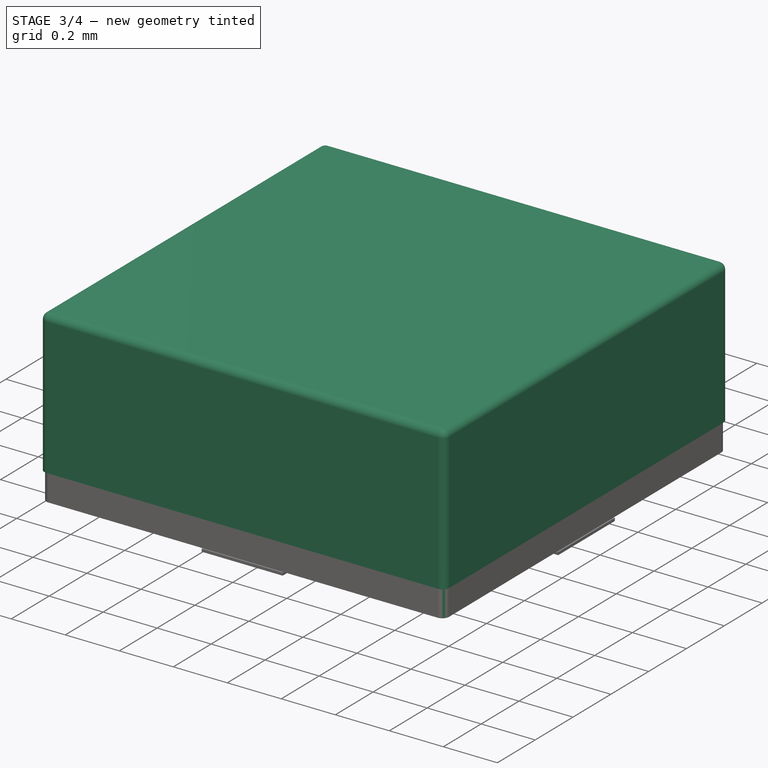
[diagram: stage 3 of 4 — iso view after this stage's code; geometry added in this stage tinted green]
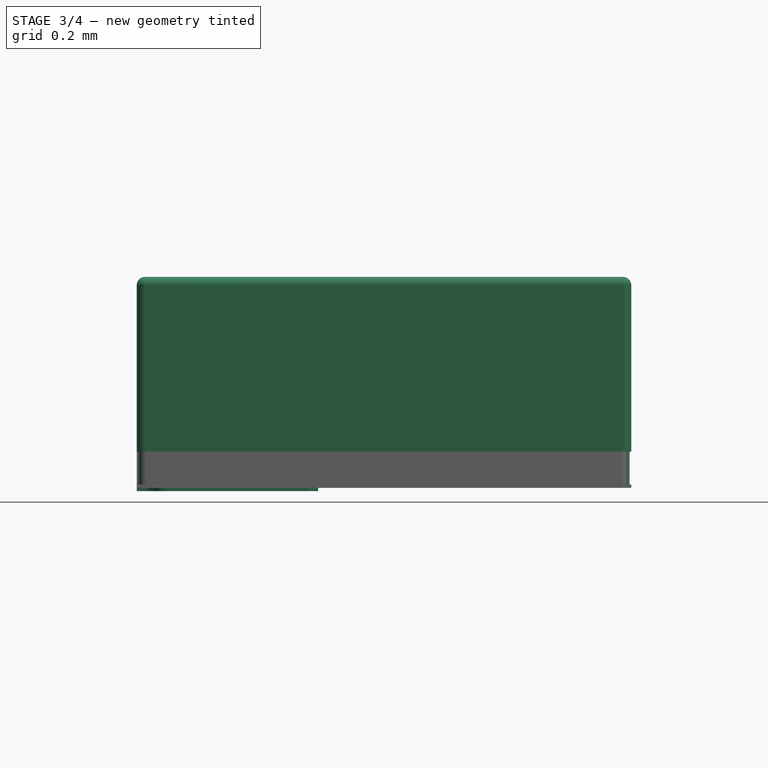
[diagram: stage 3 of 4 — front view after this stage's code; geometry added in this stage tinted green]
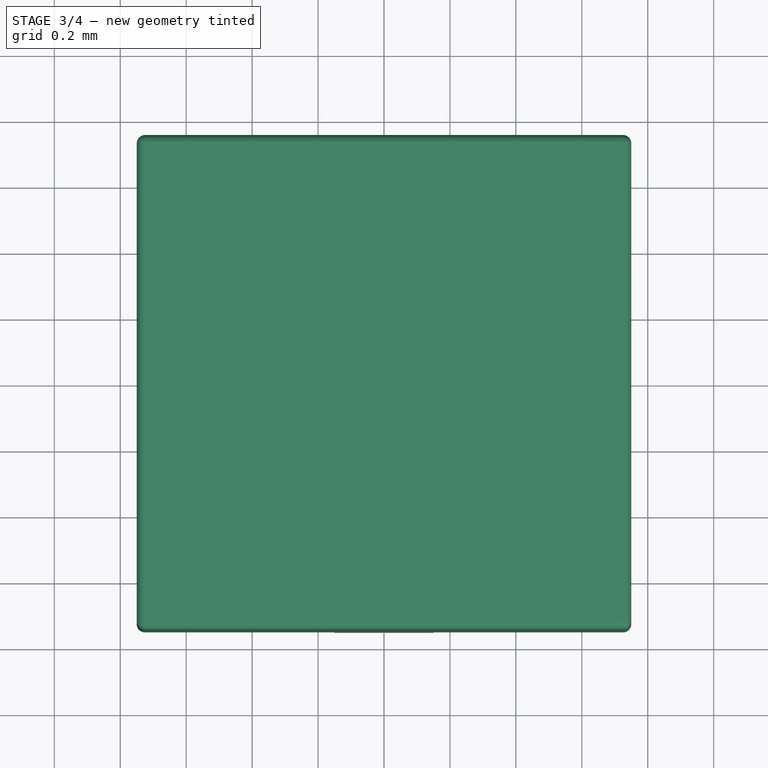
[diagram: stage 3 of 4 — top view after this stage's code; geometry added in this stage tinted green]
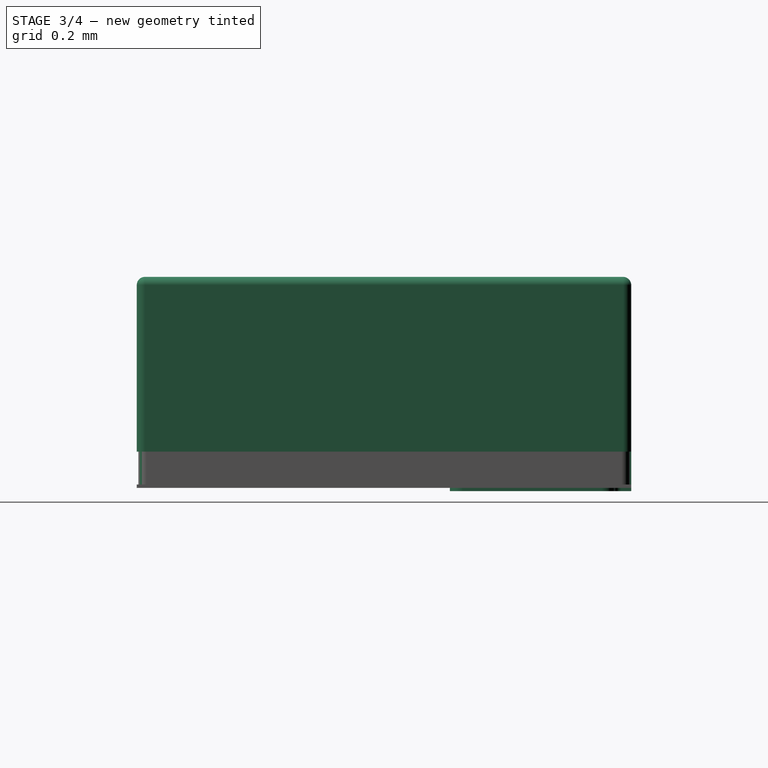
[diagram: stage 3 of 4 — right view after this stage's code; geometry added in this stage tinted green]
FEATURE [PartDesign::Body] Body003  label="Pad 3"
  Group = -> [MirroredSketch002,Pad002]
  Origin = -> Origin003
  Tip = -> Pad002
FEATURE [PartDesign::Pad] Pad003
  Direction = (0,0,1)
  Length = 0.12
  Length2 = 100
  Profile = -> Sketch
  Type = 0
FEATURE [Sketcher::SketchObject] Sketch002
  AttachmentOffset = pos=(0,0,0.12) rot=(0,0,1;0rad)
  FullyConstrained = true
  MapMode = 5
  Placement = pos=(0,0,0.12) rot=(0,0,1;0rad)
  Support = -> [XY_Plane005]
  sketch-geometry (4):
    g0: LineSegment StartX=-0.75 StartY=0.75 StartZ=0 EndX=0.75 EndY=0.75 EndZ=0
    g1: LineSegment StartX=0.75 StartY=0.75 StartZ=0 EndX=0.75 EndY=-0.75 EndZ=0
    g2: LineSegment StartX=0.75 StartY=-0.75 StartZ=0 EndX=-0.75 EndY=-0.75 EndZ=0
    g3: LineSegment StartX=-0.75 StartY=-0.75 StartZ=0 EndX=-0.75 EndY=0.75 EndZ=0
  constraints (11):
    c: Coincident(g0,g1)
    c: Coincident(g1,g2)
    c: Coincident(g2,g3)
    c: Coincident(g3,g0)
    c: Horizontal(g0)
    c: Horizontal(g2)
    c: Vertical(g1)
    c: Vertical(g3)
    c: Symmetric(g2,g0,g-1)
    c: DistanceX(g0,g0) = 1.5
    c: DistanceY(g1,g1) = 1.5
FEATURE [PartDesign::Pad] Pad005
  Direction = (0,0,1)
  Length = 0.53
  Length2 = 100
  Profile = -> Sketch002
  Type = 0
FEATURE [PartDesign::Fillet] Fillet
  Base = -> Pad005 [Edge8,Edge10,Edge12,Edge1,Edge5,Edge7,Edge4,Edge2]
  BaseFeature = -> Pad005
  Radius = 0.025
  SupportTransform = false
FEATURE [PartDesign::Body] Body005  label="Lens"
  Group = -> [Sketch002,Pad005,Fillet]
  Origin = -> Origin005
  Tip = -> Fillet
FEATURE [PartDesign::Fillet] Fillet001
  Base = -> Pad004 [Edge2,Edge5,Edge1,Edge8]
  BaseFeature = -> Pad004
  Radius = 0.025
  SupportTransform = false
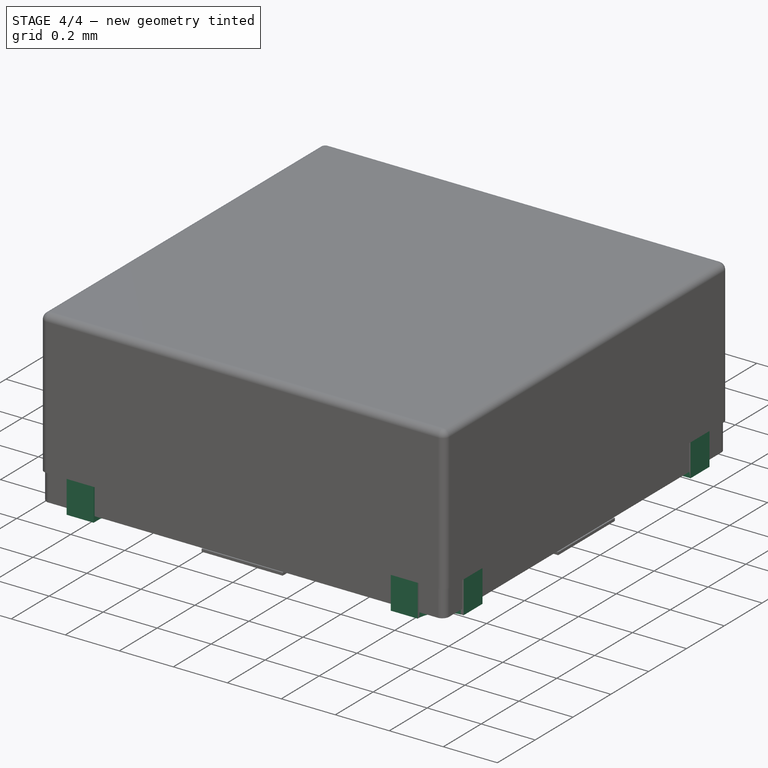
[diagram: stage 4 of 4 — iso view after this stage's code; geometry added in this stage tinted green]
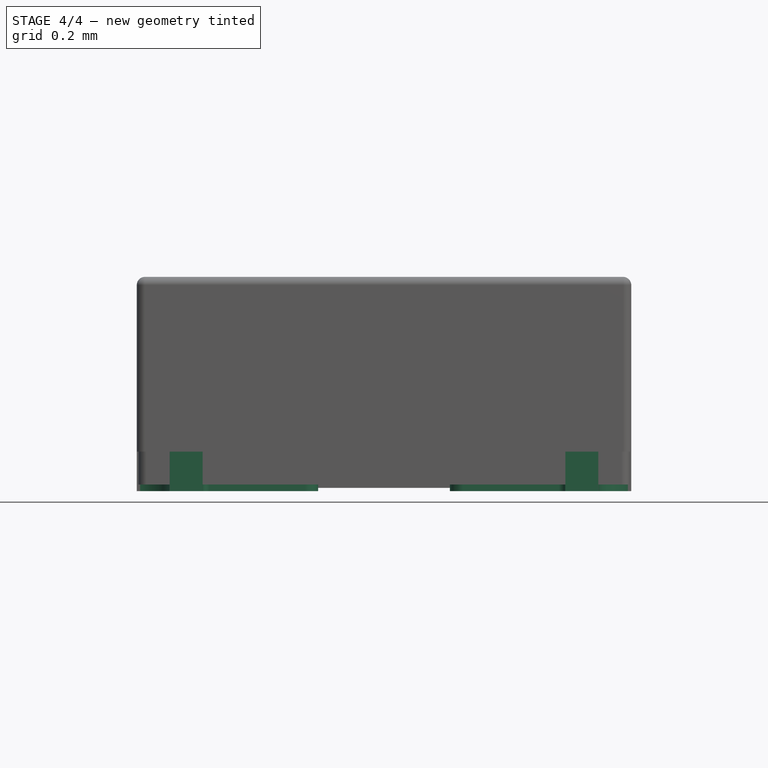
[diagram: stage 4 of 4 — front view after this stage's code; geometry added in this stage tinted green]
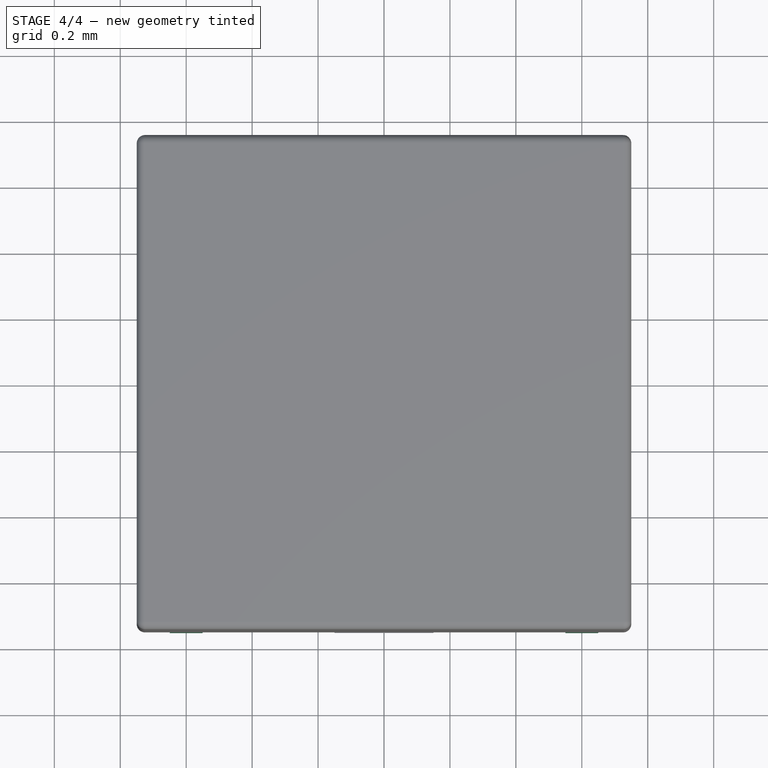
[diagram: stage 4 of 4 — top view after this stage's code; geometry added in this stage tinted green]
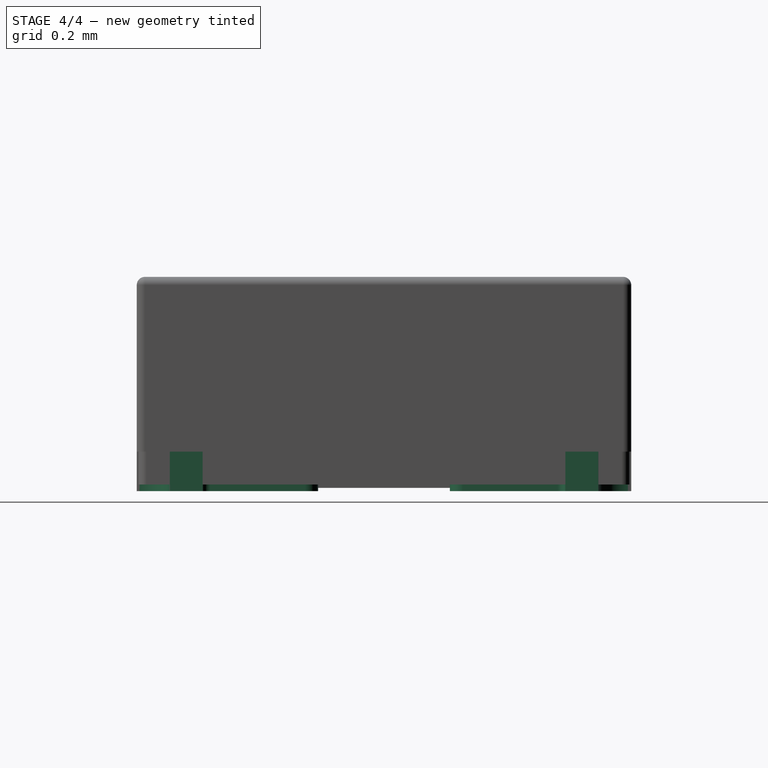
[diagram: stage 4 of 4 — right view after this stage's code; geometry added in this stage tinted green]
FEATURE [Sketcher::SketchObject] Sketch
  FullyConstrained = false
  MapMode = 5
  Support = -> [XY_Plane]
  sketch-geometry (18):
    g0: LineSegment StartX=-0.75 StartY=0.75 StartZ=0 EndX=0.75 EndY=0.75 EndZ=0
    g1: LineSegment StartX=0.75 StartY=0.75 StartZ=0 EndX=0.75 EndY=-0.75 EndZ=0
    g2: LineSegment StartX=0.75 StartY=-0.75 StartZ=0 EndX=-0.75 EndY=-0.75 EndZ=0
    g3: LineSegment StartX=-0.75 StartY=-0.75 StartZ=0 EndX=-0.75 EndY=0.75 EndZ=0
    g4: ArcOfCircle CenterX=-0.75 CenterY=0.75 CenterZ=0 NormalX=0 NormalY=0 NormalZ=1 AngleXU=0 Radius=0.1 StartAngle=4.71239 EndAngle=6.28319
    g5: LineSegment StartX=-0.55 StartY=0.75 StartZ=0 EndX=-0.55 EndY=0.72 EndZ=0
    g6: LineSegment StartX=-0.53 StartY=0.7 StartZ=0 EndX=-0.24 EndY=0.7 EndZ=0
    g7: LineSegment StartX=-0.2 StartY=0.66 StartZ=0 EndX=-0.2 EndY=0.24 EndZ=0
    g8: LineSegment StartX=-0.24 StartY=0.2 StartZ=0 EndX=-0.66 EndY=0.2 EndZ=0
    g9: LineSegment StartX=-0.7 StartY=0.24 StartZ=0 EndX=-0.7 EndY=0.526907 EndZ=0
    g10: LineSegment StartX=-0.723093 StartY=0.55 StartZ=0 EndX=-0.75 EndY=0.55 EndZ=0
    g11: LineSegment StartX=-0.65 StartY=0.75 StartZ=0 EndX=-0.55 EndY=0.75 EndZ=0
    g12: LineSegment StartX=-0.75 StartY=0.65 StartZ=0 EndX=-0.75 EndY=0.55 EndZ=0
    g13: ArcOfCircle CenterX=-0.24 CenterY=0.66 CenterZ=0 NormalX=0 NormalY=0 NormalZ=1 AngleXU=0 Radius=0.04 StartAngle=0 EndAngle=1.5708
    g14: ArcOfCircle CenterX=-0.24 CenterY=0.24 CenterZ=0 NormalX=0 NormalY=0 NormalZ=1 AngleXU=0 Radius=0.04 StartAngle=4.71239 EndAngle=6.28319
    g15: ArcOfCircle CenterX=-0.53 CenterY=0.72 CenterZ=0 NormalX=0 NormalY=0 NormalZ=1 AngleXU=0 Radius=0.02 StartAngle=3.14159 EndAngle=4.71239
    g16: ArcOfCircle CenterX=-0.723093 CenterY=0.526907 CenterZ=0 NormalX=0 NormalY=0 NormalZ=1 AngleXU=0 Radius=0.023093 StartAngle=2e-16 EndAngle=1.5708
    g17: ArcOfCircle CenterX=-0.66 CenterY=0.24 CenterZ=0 NormalX=0 NormalY=0 NormalZ=1 AngleXU=0 Radius=0.04 StartAngle=3.14159 EndAngle=4.71239
  constraints (47):
    c: Coincident(g0,g1)
    c: Coincident(g1,g2)
    c: Coincident(g2,g3)
    c: Coincident(g3,g0)
    c: Horizontal(g0)
    c: Horizontal(g2)
    c: Vertical(g1)
    c: Vertical(g3)
    c: Symmetric(g0,g2,g-1)
    c: DistanceX(g0,g0) = 1.5
    c: DistanceY(g1,g1) = 1.5
    c: Coincident(g4,g0)
    c: PointOnObject(g4,g3)
    c: PointOnObject(g4,g0)
    c: Radius(g4) = 0.1
    c: PointOnObject(g5,g0)
    c: Vertical(g5)
    c: Vertical(g7)
    c: Vertical(g9)
    c: PointOnObject(g10,g3)
    c: Horizontal(g10)
    c: Horizontal(g8)
    c: Horizontal(g6)
    c: DistanceX(g4,g5) = 0.1
    c: DistanceY(g10,g4) = 0.1
    c: Coincident(g11,g4)
    c: Coincident(g11,g5)
    c: Coincident(g12,g4)
    c: Coincident(g12,g10)
    c: Tangent(g6,g13) = 1.5708
    c: Tangent(g7,g13) = 1.5708
    c: Tangent(g7,g14) = 1.5708
    c: Tangent(g8,g14) = 1.5708
    c: Tangent(g5,g15) = -1.5708
    c: Tangent(g6,g15) = -1.5708
    c: Tangent(g10,g16) = -1.5708
    c: Tangent(g9,g16) = -1.5708
    c: Tangent(g9,g17) = 1.5708
    c: Tangent(g8,g17) = 1.5708
    c: Radius(g15) = 0.02
    c: Radius(g13) = 0.04
    c: Radius(g14) = 0.04
    c: Radius(g17) = 0.04
    c: DistanceX(g10,g9) = 0.05
    c: DistanceY(g6,g5) = 0.05
    c: DistanceY(g8,g6) = 0.5
    c: DistanceX(g9,g7) = 0.5
FEATURE [Sketcher::SketchObject] MirroredSketch
  FullyConstrained = false
  MapMode = 5
  Support = -> [XY_Plane001]
  sketch-geometry (18):
    g0: LineSegment StartX=0.75 StartY=-0.75 StartZ=0 EndX=-0.75 EndY=-0.75 EndZ=0
    g1: LineSegment StartX=-0.75 StartY=-0.75 StartZ=0 EndX=-0.75 EndY=0.75 EndZ=0
    g2: LineSegment StartX=-0.75 StartY=0.75 StartZ=0 EndX=0.75 EndY=0.75 EndZ=0
    g3: LineSegment StartX=0.75 StartY=0.75 StartZ=0 EndX=0.75 EndY=-0.75 EndZ=0
    g4: ArcOfCircle CenterX=0.75 CenterY=-0.75 CenterZ=0 NormalX=0 NormalY=0 NormalZ=1 AngleXU=0 Radius=0.1 StartAngle=1.5708 EndAngle=3.14159
    g5: LineSegment StartX=0.55 StartY=-0.75 StartZ=0 EndX=0.55 EndY=-0.72 EndZ=0
    g6: LineSegment StartX=0.53 StartY=-0.7 StartZ=0 EndX=0.24 EndY=-0.7 EndZ=0
    g7: LineSegment StartX=0.2 StartY=-0.66 StartZ=0 EndX=0.2 EndY=-0.24 EndZ=0
    g8: LineSegment StartX=0.24 StartY=-0.2 StartZ=0 EndX=0.66 EndY=-0.2 EndZ=0
    g9: LineSegment StartX=0.7 StartY=-0.24 StartZ=0 EndX=0.7 EndY=-0.526907 EndZ=0
    g10: LineSegment StartX=0.723093 StartY=-0.55 StartZ=0 EndX=0.75 EndY=-0.55 EndZ=0
    g11: LineSegment StartX=0.65 StartY=-0.75 StartZ=0 EndX=0.55 EndY=-0.75 EndZ=0
    g12: LineSegment StartX=0.75 StartY=-0.65 StartZ=0 EndX=0.75 EndY=-0.55 EndZ=0
    g13: ArcOfCircle CenterX=0.24 CenterY=-0.66 CenterZ=0 NormalX=0 NormalY=0 NormalZ=1 AngleXU=0 Radius=0.04 StartAngle=3.14159 EndAngle=4.71239
    g14: ArcOfCircle CenterX=0.24 CenterY=-0.24 CenterZ=0 NormalX=0 NormalY=0 NormalZ=1 AngleXU=0 Radius=0.04 StartAngle=1.5708 EndAngle=3.14159
    g15: ArcOfCircle CenterX=0.53 CenterY=-0.72 CenterZ=0 NormalX=0 NormalY=0 NormalZ=1 AngleXU=0 Radius=0.02 StartAngle=0 EndAngle=1.5708
    g16: ArcOfCircle CenterX=0.723093 CenterY=-0.526907 CenterZ=0 NormalX=0 NormalY=0 NormalZ=1 AngleXU=0 Radius=0.023093 StartAngle=3.14159 EndAngle=4.71239
    g17: ArcOfCircle CenterX=0.66 CenterY=-0.24 CenterZ=0 NormalX=0 NormalY=0 NormalZ=1 AngleXU=0 Radius=0.04 StartAngle=0 EndAngle=1.5708
  constraints (38):
    c: Coincident(g0,g1)
    c: Coincident(g1,g2)
    c: Coincident(g2,g3)
    c: Coincident(g3,g0)
    c: Horizontal(g0)
    c: Horizontal(g2)
    c: Vertical(g1)
    c: Vertical(g3)
    c: Coincident(g4,g0)
    c: PointOnObject(g4,g3)
    c: PointOnObject(g4,g0)
    c: Radius(g4) = 0.1
    c: PointOnObject(g5,g0)
    c: Vertical(g5)
    c: Vertical(g7)
    c: Vertical(g9)
    c: PointOnObject(g10,g3)
    c: Horizontal(g10)
    c: Horizontal(g8)
    c: Horizontal(g6)
    c: Coincident(g11,g4)
    c: Coincident(g11,g5)
    c: Coincident(g12,g4)
    c: Coincident(g12,g10)
    c: Tangent(g6,g13) = 1.5708
    c: Tangent(g7,g13) = 1.5708
    c: Tangent(g7,g14) = 1.5708
    c: Tangent(g8,g14) = 1.5708
    c: Tangent(g5,g15) = -1.5708
    c: Tangent(g6,g15) = -1.5708
    c: Tangent(g10,g16) = -1.5708
    c: Tangent(g9,g16) = -1.5708
    c: Tangent(g9,g17) = 1.5708
    c: Tangent(g8,g17) = 1.5708
    c: Radius(g15) = 0.02
    c: Radius(g13) = 0.04
    c: Radius(g14) = 0.04
    c: Radius(g17) = 0.04
FEATURE [Sketcher::SketchObject] MirroredSketch001
  FullyConstrained = false
  MapMode = 5
  Support = -> [XY_Plane002]
  sketch-geometry (18):
    g0: LineSegment StartX=-0.75 StartY=-0.75 StartZ=0 EndX=0.75 EndY=-0.75 EndZ=0
    g1: LineSegment StartX=0.75 StartY=-0.75 StartZ=0 EndX=0.75 EndY=0.75 EndZ=0
    g2: LineSegment StartX=0.75 StartY=0.75 StartZ=0 EndX=-0.75 EndY=0.75 EndZ=0
    g3: LineSegment StartX=-0.75 StartY=0.75 StartZ=0 EndX=-0.75 EndY=-0.75 EndZ=0
    g4: ArcOfCircle CenterX=-0.75 CenterY=-0.75 CenterZ=0 NormalX=0 NormalY=0 NormalZ=1 AngleXU=0 Radius=0.1 StartAngle=0 EndAngle=1.5708
    g5: LineSegment StartX=-0.55 StartY=-0.75 StartZ=0 EndX=-0.55 EndY=-0.72 EndZ=0
    g6: LineSegment StartX=-0.53 StartY=-0.7 StartZ=0 EndX=-0.24 EndY=-0.7 EndZ=0
    g7: LineSegment StartX=-0.2 StartY=-0.66 StartZ=0 EndX=-0.2 EndY=-0.24 EndZ=0
    g8: LineSegment StartX=-0.24 StartY=-0.2 StartZ=0 EndX=-0.66 EndY=-0.2 EndZ=0
    g9: LineSegment StartX=-0.7 StartY=-0.24 StartZ=0 EndX=-0.7 EndY=-0.526907 EndZ=0
    g10: LineSegment StartX=-0.723093 StartY=-0.55 StartZ=0 EndX=-0.75 EndY=-0.55 EndZ=0
    g11: LineSegment StartX=-0.65 StartY=-0.75 StartZ=0 EndX=-0.55 EndY=-0.75 EndZ=0
    g12: LineSegment StartX=-0.75 StartY=-0.65 StartZ=0 EndX=-0.75 EndY=-0.55 EndZ=0
    g13: ArcOfCircle CenterX=-0.24 CenterY=-0.66 CenterZ=0 NormalX=0 NormalY=0 NormalZ=1 AngleXU=0 Radius=0.04 StartAngle=4.71239 EndAngle=6.28319
    g14: ArcOfCircle CenterX=-0.24 CenterY=-0.24 CenterZ=0 NormalX=0 NormalY=0 NormalZ=1 AngleXU=0 Radius=0.04 StartAngle=0 EndAngle=1.5708
    g15: ArcOfCircle CenterX=-0.53 CenterY=-0.72 CenterZ=0 NormalX=0 NormalY=0 NormalZ=1 AngleXU=0 Radius=0.02 StartAngle=1.5708 EndAngle=3.14159
    g16: ArcOfCircle CenterX=-0.723093 CenterY=-0.526907 CenterZ=0 NormalX=0 NormalY=0 NormalZ=1 AngleXU=0 Radius=0.023093 StartAngle=4.71239 EndAngle=6.28319
    g17: ArcOfCircle CenterX=-0.66 CenterY=-0.24 CenterZ=0 NormalX=0 NormalY=0 NormalZ=1 AngleXU=0 Radius=0.04 StartAngle=1.5708 EndAngle=3.14159
  constraints (38):
    c: Coincident(g0,g1)
    c: Coincident(g1,g2)
    c: Coincident(g2,g3)
    c: Coincident(g3,g0)
    c: Horizontal(g0)
    c: Horizontal(g2)
    c: Vertical(g1)
    c: Vertical(g3)
    c: Coincident(g4,g0)
    c: PointOnObject(g4,g3)
    c: PointOnObject(g4,g0)
    c: Radius(g4) = 0.1
    c: PointOnObject(g5,g0)
    c: Vertical(g5)
    c: Vertical(g7)
    c: Vertical(g9)
    c: PointOnObject(g10,g3)
    c: Horizontal(g10)
    c: Horizontal(g8)
    c: Horizontal(g6)
    c: Coincident(g11,g4)
    c: Coincident(g11,g5)
    c: Coincident(g12,g4)
    c: Coincident(g12,g10)
    c: Tangent(g6,g13) = -1.5708
    c: Tangent(g7,g13) = -1.5708
    c: Tangent(g7,g14) = -1.5708
    c: Tangent(g8,g14) = -1.5708
    c: Tangent(g5,g15) = 1.5708
    c: Tangent(g6,g15) = 1.5708
    c: Tangent(g10,g16) = 1.5708
    c: Tangent(g9,g16) = 1.5708
    c: Tangent(g9,g17) = -1.5708
    c: Tangent(g8,g17) = -1.5708
    c: Radius(g15) = 0.02
    c: Radius(g13) = 0.04
    c: Radius(g14) = 0.04
    c: Radius(g17) = 0.04
FEATURE [Sketcher::SketchObject] MirroredSketch002
  FullyConstrained = false
  MapMode = 5
  Support = -> [XY_Plane003]
  sketch-geometry (18):
    g0: LineSegment StartX=0.75 StartY=0.75 StartZ=0 EndX=-0.75 EndY=0.75 EndZ=0
    g1: LineSegment StartX=-0.75 StartY=0.75 StartZ=0 EndX=-0.75 EndY=-0.75 EndZ=0
    g2: LineSegment StartX=-0.75 StartY=-0.75 StartZ=0 EndX=0.75 EndY=-0.75 EndZ=0
    g3: LineSegment StartX=0.75 StartY=-0.75 StartZ=0 EndX=0.75 EndY=0.75 EndZ=0
    g4: ArcOfCircle CenterX=0.75 CenterY=0.75 CenterZ=0 NormalX=0 NormalY=0 NormalZ=1 AngleXU=0 Radius=0.1 StartAngle=3.14159 EndAngle=4.71239
    g5: LineSegment StartX=0.55 StartY=0.75 StartZ=0 EndX=0.55 EndY=0.72 EndZ=0
    g6: LineSegment StartX=0.53 StartY=0.7 StartZ=0 EndX=0.24 EndY=0.7 EndZ=0
    g7: LineSegment StartX=0.2 StartY=0.66 StartZ=0 EndX=0.2 EndY=0.24 EndZ=0
    g8: LineSegment StartX=0.24 StartY=0.2 StartZ=0 EndX=0.66 EndY=0.2 EndZ=0
    g9: LineSegment StartX=0.7 StartY=0.24 StartZ=0 EndX=0.7 EndY=0.526907 EndZ=0
    g10: LineSegment StartX=0.723093 StartY=0.55 StartZ=0 EndX=0.75 EndY=0.55 EndZ=0
    g11: LineSegment StartX=0.65 StartY=0.75 StartZ=0 EndX=0.55 EndY=0.75 EndZ=0
    g12: LineSegment StartX=0.75 StartY=0.65 StartZ=0 EndX=0.75 EndY=0.55 EndZ=0
    g13: ArcOfCircle CenterX=0.24 CenterY=0.66 CenterZ=0 NormalX=0 NormalY=0 NormalZ=1 AngleXU=0 Radius=0.04 StartAngle=1.5708 EndAngle=3.14159
    g14: ArcOfCircle CenterX=0.24 CenterY=0.24 CenterZ=0 NormalX=0 NormalY=0 NormalZ=1 AngleXU=0 Radius=0.04 StartAngle=3.14159 EndAngle=4.71239
    g15: ArcOfCircle CenterX=0.53 CenterY=0.72 CenterZ=0 NormalX=0 NormalY=0 NormalZ=1 AngleXU=0 Radius=0.02 StartAngle=4.71239 EndAngle=6.28319
    g16: ArcOfCircle CenterX=0.723093 CenterY=0.526907 CenterZ=0 NormalX=0 NormalY=0 NormalZ=1 AngleXU=0 Radius=0.023093 StartAngle=1.5708 EndAngle=3.14159
    g17: ArcOfCircle CenterX=0.66 CenterY=0.24 CenterZ=0 NormalX=0 NormalY=0 NormalZ=1 AngleXU=0 Radius=0.04 StartAngle=4.71239 EndAngle=6.28319
  constraints (38):
    c: Coincident(g0,g1)
    c: Coincident(g1,g2)
    c: Coincident(g2,g3)
    c: Coincident(g3,g0)
    c: Horizontal(g0)
    c: Horizontal(g2)
    c: Vertical(g1)
    c: Vertical(g3)
    c: Coincident(g4,g0)
    c: PointOnObject(g4,g3)
    c: PointOnObject(g4,g0)
    c: Radius(g4) = 0.1
    c: PointOnObject(g5,g0)
    c: Vertical(g5)
    c: Vertical(g7)
    c: Vertical(g9)
    c: PointOnObject(g10,g3)
    c: Horizontal(g10)
    c: Horizontal(g8)
    c: Horizontal(g6)
    c: Coincident(g11,g4)
    c: Coincident(g11,g5)
    c: Coincident(g12,g4)
    c: Coincident(g12,g10)
    c: Tangent(g6,g13) = -1.5708
    c: Tangent(g7,g13) = -1.5708
    c: Tangent(g7,g14) = -1.5708
    c: Tangent(g8,g14) = -1.5708
    c: Tangent(g5,g15) = 1.5708
    c: Tangent(g6,g15) = 1.5708
    c: Tangent(g10,g16) = 1.5708
    c: Tangent(g9,g16) = 1.5708
    c: Tangent(g9,g17) = -1.5708
    c: Tangent(g8,g17) = -1.5708
    c: Radius(g15) = 0.02
    c: Radius(g13) = 0.04
    c: Radius(g14) = 0.04
    c: Radius(g17) = 0.04
FEATURE [PartDesign::Pad] Pad
  Direction = (0,0,1)
  Length = 0.12
  Length2 = 100
  Profile = -> MirroredSketch
  Type = 0
FEATURE [PartDesign::Body] Body001  label="Pad 2"
  Group = -> [MirroredSketch,Pad]
  Origin = -> Origin001
  Tip = -> Pad
FEATURE [PartDesign::Pad] Pad001
  Direction = (0,0,1)
  Length = 0.12
  Length2 = 100
  Profile = -> MirroredSketch001
  Type = 0
FEATURE [PartDesign::Body] Body002  label="Pad 1"
  Group = -> [MirroredSketch001,Pad001]
  Origin = -> Origin002
  Tip = -> Pad001
FEATURE [PartDesign::Pad] Pad002
  Direction = (0,0,1)
  Length = 0.12
  Length2 = 100
  Profile = -> MirroredSketch002
  Type = 0
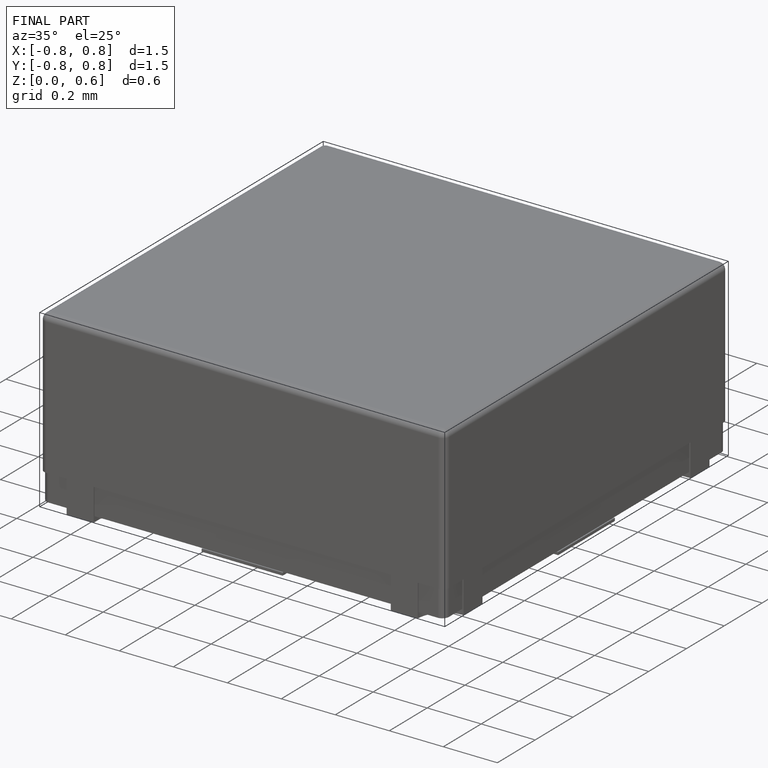
[diagram: finished part — iso view with bounding-box wireframe]
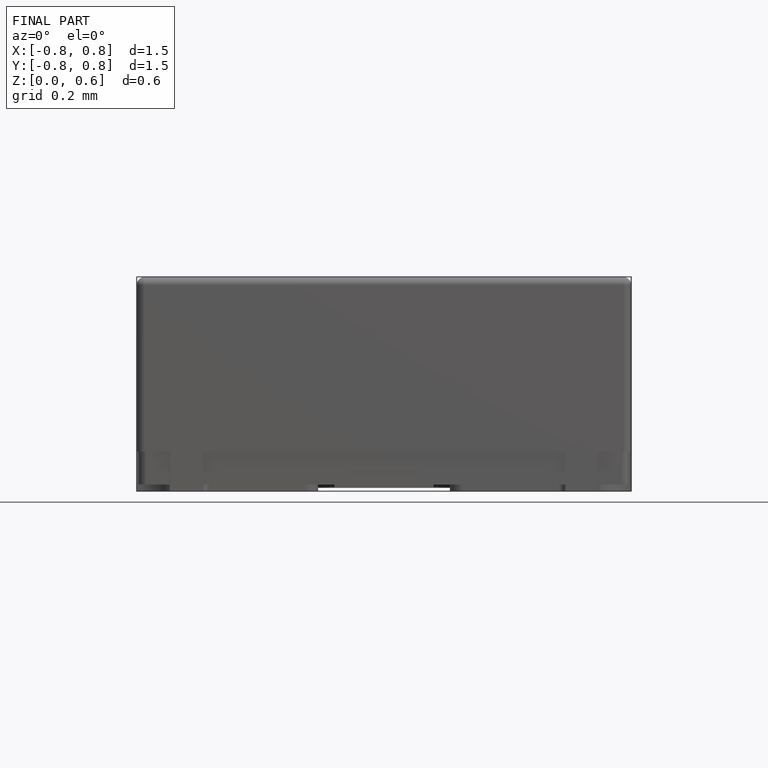
[diagram: finished part — front view with bounding-box wireframe]
